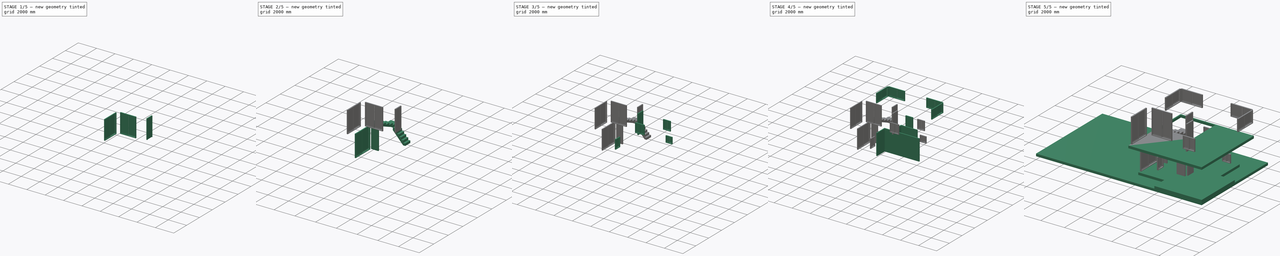
[diagram: build sequence overview — one tinted view per stage of 5, left to right]
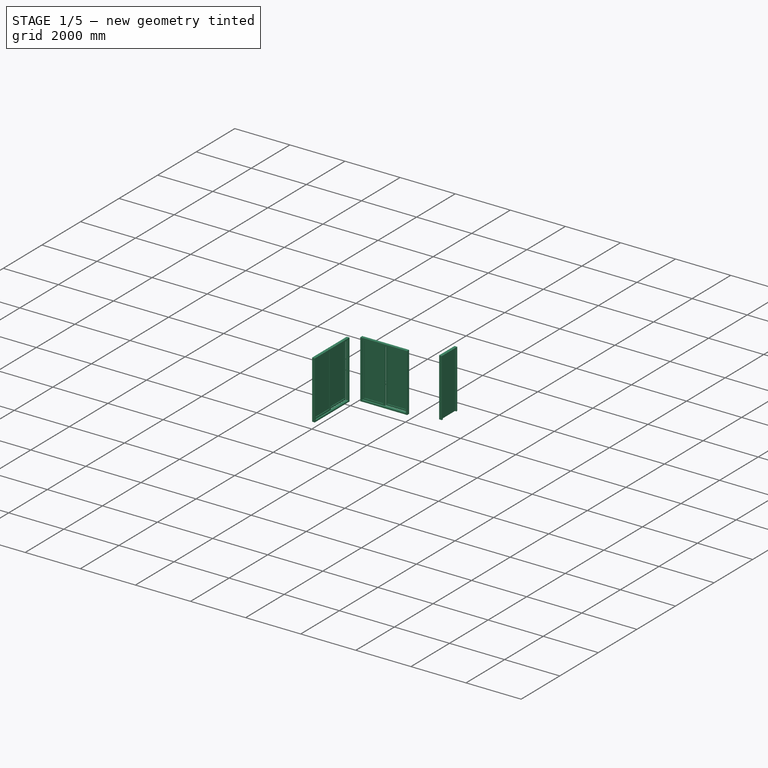
[diagram: stage 1 of 5 — iso view after this stage's code; geometry added in this stage tinted green]
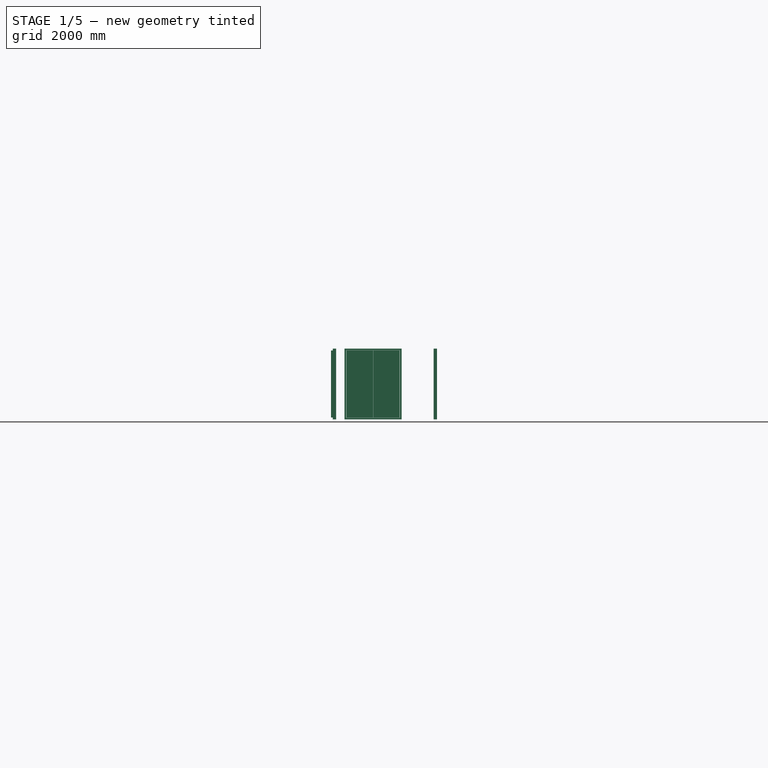
[diagram: stage 1 of 5 — front view after this stage's code; geometry added in this stage tinted green]
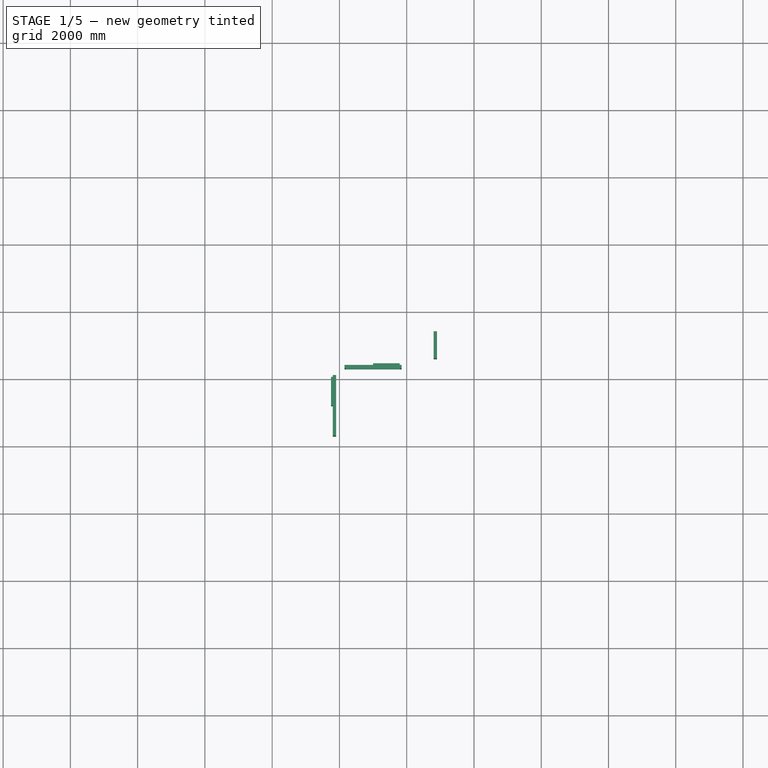
[diagram: stage 1 of 5 — top view after this stage's code; geometry added in this stage tinted green]
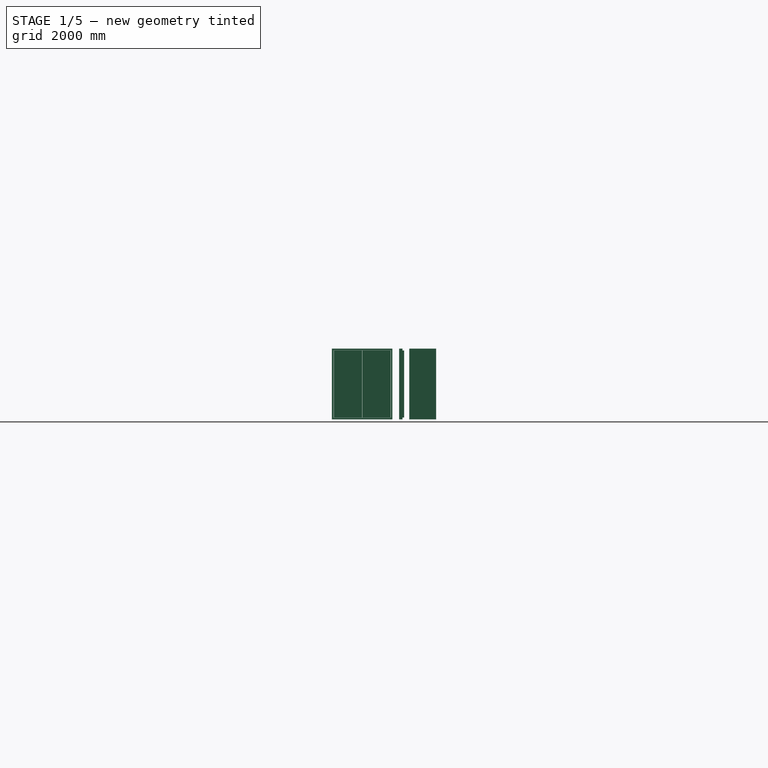
[diagram: stage 1 of 5 — right view after this stage's code; geometry added in this stage tinted green]
FCSTD DOCUMENT  (FreeCAD 1.0R38641 +468 (Git))
Label: Home
License: All rights reserved
LicenseURL: https://en.wikipedia.org/wiki/All_rights_reserved
objects: Part::FeaturePython×30, Sketcher::SketchObject×28, App::GeometryPython×4, App::DocumentObjectGroup×3
note: 90 computed .brp shape members not serialized (recipe doc carries the construction recipe); baked Part::Feature solids carry a one-line shape summary decoded from their .brp

FEATURE [Sketcher::SketchObject] Sketch041
  ArcFitTolerance = 1e-06
  FullyConstrained = true
  MakeInternals = false
  Placement = pos=(-5900,3500,0) rot=(1,0,0;1.5708rad)
  sketch-geometry (4):
    g0: LineSegment StartX=0 StartY=0 StartZ=0 EndX=1800 EndY=0 EndZ=0
    g1: LineSegment StartX=1800 StartY=0 StartZ=0 EndX=1800 EndY=2100 EndZ=0
    g2: LineSegment StartX=1800 StartY=2100 StartZ=0 EndX=0 EndY=2100 EndZ=0
    g3: LineSegment StartX=0 StartY=2100 StartZ=0 EndX=0 EndY=0 EndZ=0
  constraints (11):
    c: Coincident(g0,g1)
    c: Coincident(g1,g2)
    c: Coincident(g2,g3)
    c: Coincident(g3,g0)
    c: Horizontal(g0)
    c: Horizontal(g2)
    c: Vertical(g1)
    c: Vertical(g3)
    c: Coincident(g0,g-1)
    c: DistanceX(g0) = 1800  'Width'
    c: DistanceY(g1) = 2100  'Height'
FEATURE [Part::FeaturePython] Window021  label="Opening"  # Arch/BIM 93 (typed FeaturePython)
  Area = 3780000
  Base = -> Sketch041
  Frame = 50
  Height = 2100
  HoleDepth = 0
  HoleWire = 0
  HorizontalArea = 0
  Hosts = -> [Wall001]
  IfcData = attributes={"GlobalId": {"name": "GlobalId", "type": "IfcGloballyUniqueId", "is_enum": false, "enum_values": []}, "Description": {"... (+1192 chars omitted),+1 more (map truncated)
  IfcType = 93
  LouvreSpacing = 0
  LouvreWidth = 0
  MoveBase = false
  MoveWithHost = true
  Normal = (0,1,-2e-16)
  Opening = 0
  PerimeterLength = 0
  PredefinedType = 0
  Preset = 10
  SymbolElevation = false
  SymbolPlan = false
  VerticalArea = 0
  Width = 1800
FEATURE [Part::FeaturePython] Roof001  label="Roof"  # Arch/BIM 113 (typed FeaturePython)
  Angles = [0,3,0,0]
  Base = -> Sketch019
  BorderLength = 29820.9
  Face = 0
  Flip = false
  Heights = [0,393.058,0,0]
  HorizontalArea = 5.548e+07
  IdRel = [-1,-1,-1,-1]
  IfcData = attributes={"GlobalId": {"name": "GlobalId", "type": "IfcGloballyUniqueId", "is_enum": false, "enum_values": []}, "Description": {"... (+613 chars omitted),+1 more (map truncated)
  IfcType = 113
  MoveBase = false
  MoveWithHost = false
  Overhang = [100,100,100,100]
  PerimeterLength = 29800
  PredefinedType = 0
  RidgeLength = 0
  Runs = [0,7500,0,0]
  Thickness = [50,50,50,50]
  VerticalArea = 1.49204e+06
FEATURE [Part::FeaturePython] Wall003  label="Wall Interior Level 2"  # Arch/BIM 166 (typed FeaturePython)
  Align = 0
  ArchSketchData = true
  Area = 38080000
  Base = -> Sketch015
  BlockHeight = 0
  BlockLength = 0
  CountBroken = 0
  CountEntire = 0
  Face = 0
  Height = 2800
  HorizontalArea = 0
  IfcData = attributes={"GlobalId": {"name": "GlobalId", "type": "IfcGloballyUniqueId", "is_enum": false, "enum_values": []}, "Description": {"... (+533 chars omitted),+1 more (map truncated)
  IfcType = 166
  Joint = 0
  Length = 13600
  MakeBlocks = false
  MoveBase = false
  MoveWithHost = false
  Normal = (0,0,0)
  OffsetFirst = 0
  OffsetSecond = 0
  PerimeterLength = 0
  PredefinedType = 0
  Subtractions = -> [Roof001]
  VerticalArea = 0
  Width = 100
FEATURE [Part::FeaturePython] Wall004  label="Wall Exterior Level 2"  # Arch/BIM 166 (typed FeaturePython)
  Align = 1
  ArchSketchData = true
  Area = 68880000
  Base = -> Sketch020
  BlockHeight = 0
  BlockLength = 0
  CountBroken = 0
  CountEntire = 0
  Face = 0
  Height = 2800
  HorizontalArea = 0
  IfcData = attributes={"GlobalId": {"name": "GlobalId", "type": "IfcGloballyUniqueId", "is_enum": false, "enum_values": []}, "Description": {"... (+533 chars omitted),+1 more (map truncated)
  IfcType = 166
  Joint = 0
  Length = 24600
  MakeBlocks = false
  MoveBase = false
  MoveWithHost = false
  Normal = (0,0,0)
  OffsetFirst = 0
  OffsetSecond = 0
  PerimeterLength = 0
  PredefinedType = 0
  Subtractions = -> [Roof001]
  VerticalArea = 0
  Width = 100
FEATURE [App::DocumentObjectGroup] Group001  label="Stairs"
  Group = -> [Stairs,Structure003,Stairs001,Wall006]
FEATURE [App::GeometryPython] BuildingPart002  label="Level 1"  # Arch/BIM 14 (typed FeaturePython)
  Area = 0
  CompositionType = 0
  Elevation = 0
  Group = -> [Structure001,Group,Group001]
  Height = 0
  HeightPropagate = true
  IfcData = attributes={"GlobalId": {"name": "GlobalId", "type": "IfcGloballyUniqueId", "is_enum": false, "enum_values": []}, "Description": {"... (+845 chars omitted),+1 more (map truncated)
  IfcType = 14
  LevelOffset = 0
  LongName = Level
  MaterialsTable = Undefined=0,1,2,3,4,5,6,7,8,9,10,11,12,13,14,15,16,17,18,19,20,21,22,23,24,25,26,27,28,29,30,31,32,33,34,35
  OnlySolids = true
  expr: Elevation = .Placement.Base.z
FEATURE [App::GeometryPython] BuildingPart  label="House"  # Arch/BIM 10 (typed FeaturePython)
  Area = 0
  BuildingType = 0
  CompositionType = 0
  ElevationOfRefHeight = 0
  ElevationOfTerrain = 0
  Group = -> [BuildingPart002,BuildingPart003,Roof001]
  Height = 0
  HeightPropagate = true
  IfcData = attributes={"GlobalId": {"name": "GlobalId", "type": "IfcGloballyUniqueId", "is_enum": false, "enum_values": []}, "Description": {"... (+989 chars omitted),+1 more (map truncated)
  IfcType = 10
  LevelOffset = 0
  LongName = Building
  MaterialsTable = Undefined=0,1,2,3,4,5,6,7,8,9,10,11,12,13,14,15,16,17,18,19,20,21,22,23,24,25,26,27,28,29,30,31,32,33,34,35,36,37,38,39,40,41,42,4... (+109 chars omitted)
  OnlySolids = true
FEATURE [Sketcher::SketchObject] Sketch061
  ArcFitTolerance = 1e-06
  FullyConstrained = true
  MakeInternals = false
  Placement = pos=(-5850,2300,2500) rot=(1,0,0;1.5708rad)
  sketch-geometry (24):
    g0: LineSegment StartX=0 StartY=0 StartZ=0 EndX=1700 EndY=0 EndZ=0
    g1: LineSegment StartX=1700 StartY=0 StartZ=0 EndX=1700 EndY=2100 EndZ=0
    g2: LineSegment StartX=1700 StartY=2100 StartZ=0 EndX=0 EndY=2100 EndZ=0
    g3: LineSegment StartX=0 StartY=2100 StartZ=0 EndX=0 EndY=0 EndZ=0
    g4: LineSegment StartX=50 StartY=50 StartZ=0 EndX=1650 EndY=50 EndZ=0
    g5: LineSegment StartX=1650 StartY=50 StartZ=0 EndX=1650 EndY=2050 EndZ=0
    g6: LineSegment StartX=1650 StartY=2050 StartZ=0 EndX=50 EndY=2050 EndZ=0
    g7: LineSegment StartX=50 StartY=2050 StartZ=0 EndX=50 EndY=50 EndZ=0
    g8: LineSegment StartX=55 StartY=55 StartZ=0 EndX=847.5 EndY=55 EndZ=0
    g9: LineSegment StartX=847.5 StartY=55 StartZ=0 EndX=847.5 EndY=2045 EndZ=0
    g10: LineSegment StartX=847.5 StartY=2045 StartZ=0 EndX=55 EndY=2045 EndZ=0
    g11: LineSegment StartX=55 StartY=2045 StartZ=0 EndX=55 EndY=55 EndZ=0
    g12: LineSegment StartX=105 StartY=105 StartZ=0 EndX=797.5 EndY=105 EndZ=0
    g13: LineSegment StartX=797.5 StartY=105 StartZ=0 EndX=797.5 EndY=1995 EndZ=0
    g14: LineSegment StartX=797.5 StartY=1995 StartZ=0 EndX=105 EndY=1995 EndZ=0
    g15: LineSegment StartX=105 StartY=1995 StartZ=0 EndX=105 EndY=105 EndZ=0
    g16: LineSegment StartX=852.5 StartY=55 StartZ=0 EndX=1645 EndY=55 EndZ=0
    g17: LineSegment StartX=1645 StartY=55 StartZ=0 EndX=1645 EndY=2045 EndZ=0
    g18: LineSegment StartX=1645 StartY=2045 StartZ=0 EndX=852.5 EndY=2045 EndZ=0
    g19: LineSegment StartX=852.5 StartY=2045 StartZ=0 EndX=852.5 EndY=55 EndZ=0
    g20: LineSegment StartX=902.5 StartY=105 StartZ=0 EndX=1595 EndY=105 EndZ=0
    g21: LineSegment StartX=1595 StartY=105 StartZ=0 EndX=1595 EndY=1995 EndZ=0
    g22: LineSegment StartX=1595 StartY=1995 StartZ=0 EndX=902.5 EndY=1995 EndZ=0
    g23: LineSegment StartX=902.5 StartY=1995 StartZ=0 EndX=902.5 EndY=105 EndZ=0
  constraints (71):
    c: Coincident(g0,g1)
    c: Coincident(g1,g2)
    c: Coincident(g2,g3)
    c: Coincident(g3,g0)
    c: Horizontal(g0)
    c: Horizontal(g2)
    c: Vertical(g1)
    c: Vertical(g3)
    c: Coincident(g4,g5)
    c: Coincident(g5,g6)
    c: Coincident(g6,g7)
    c: Coincident(g7,g4)
    c: Horizontal(g4)
    c: Horizontal(g6)
    c: Vertical(g5)
    c: Vertical(g7)
    c: DistanceY(g1) = 2100  'Height'
    c: DistanceX(g0) = 1700  'Width'
    c: DistanceY(g6,g2) = 50  'Frame1'
    c: DistanceX(g2,g6) = 50  'Frame2'
    c: DistanceX(g4,g0) = 50  'Frame3'
    c: DistanceY(g0,g4) = 50  'Frame4'
    c: Coincident(g0,g-1)
    c: Coincident(g8,g9)
    c: Coincident(g9,g10)
    c: Coincident(g10,g11)
    c: Coincident(g11,g8)
    c: Horizontal(g8)
    c: Horizontal(g10)
    c: Vertical(g9)
    c: Vertical(g11)
    c: Coincident(g12,g13)
    c: Coincident(g13,g14)
    c: Coincident(g14,g15)
    c: Coincident(g15,g12)
    c: Horizontal(g12)
    c: Horizontal(g14)
    c: Vertical(g13)
    c: Vertical(g15)
    c: Coincident(g16,g17)
    c: Coincident(g17,g18)
    c: Coincident(g18,g19)
    c: Coincident(g19,g16)
    c: Horizontal(g16)
    c: Horizontal(g18)
    c: Vertical(g17)
    c: Vertical(g19)
    c: Coincident(g20,g21)
    c: Coincident(g21,g22)
    c: Coincident(g22,g23)
    c: Coincident(g23,g20)
    c: Horizontal(g20)
    c: Horizontal(g22)
    c: Vertical(g21)
    c: Vertical(g23)
    c: DistanceY(g8,g12) = 50  'Frame5'
    c: DistanceX(g8,g12) = 50  'Frame6'
    c: DistanceX(g21,g17) = 50  'Frame7'
    c: DistanceY(g21,g17) = 50  'Frame8'
    c: DistanceX(g16,g20) = 50  'Frame9'
    c: DistanceX(g14,g10) = 50  'Frame10'
    c: Equal(g22,g14)
    c: DistanceY(g8,g16) = 0
    c: DistanceY(g10,g18) = 0
    c: DistanceX(g4,g8) = 5
    c: DistanceY(g4,g8) = 5
    c: DistanceX(g6,g18) = -5
    c: DistanceY(g6,g18) = -5
    c: DistanceX(g9,g19) = 5
    c: PointOnObject(g13,g22)
    c: PointOnObject(g12,g20)
FEATURE [Part::FeaturePython] Window041  # Arch/BIM 170 (typed FeaturePython)
  Area = 3570000
  Base = -> Sketch061
  Frame = 50
  Height = 2100
  HoleDepth = 0
  HoleWire = 0
  HorizontalArea = 0
  Hosts = -> [Wall003]
  IfcData = attributes={"GlobalId": {"name": "GlobalId", "type": "IfcGloballyUniqueId", "is_enum": false, "enum_values": []}, "Description": {"... (+1231 chars omitted),+1 more (map truncated)
  IfcType = 170
  LouvreSpacing = 0
  LouvreWidth = 0
  MoveBase = false
  MoveWithHost = true
  Normal = (0,1,-2e-16)
  Opening = 0
  OverallHeight = 2100
  OverallWidth = 1700
  PartitioningType = 0
  PerimeterLength = 0
  PredefinedType = 0
  Preset = 5
  SymbolElevation = false
  SymbolPlan = false
  VerticalArea = 0
  Width = 1700
  WindowParts = <same value as first occurrence — deduplicated (x11 in doc)>
  expr: OverallHeight = .Height.Value
  expr: OverallWidth = .Width.Value
FEATURE [Sketcher::SketchObject] Sketch062
  ArcFitTolerance = 1e-06
  FullyConstrained = true
  MakeInternals = false
  Placement = pos=(-3100,2600,2500) rot=(0.57735,0.57735,0.57735;2.0944rad)
  sketch-geometry (8):
    g0: LineSegment StartX=0 StartY=0 StartZ=0 EndX=800 EndY=0 EndZ=0
    g1: LineSegment StartX=800 StartY=0 StartZ=0 EndX=800 EndY=2100 EndZ=0
    g2: LineSegment StartX=800 StartY=2100 StartZ=0 EndX=0 EndY=2100 EndZ=0
    g3: LineSegment StartX=0 StartY=2100 StartZ=0 EndX=0 EndY=0 EndZ=0
    g4: LineSegment StartX=50 StartY=0 StartZ=0 EndX=750 EndY=0 EndZ=0
    g5: LineSegment StartX=750 StartY=0 StartZ=0 EndX=750 EndY=2050 EndZ=0
    g6: LineSegment StartX=750 StartY=2050 StartZ=0 EndX=50 EndY=2050 EndZ=0
    g7: LineSegment StartX=50 StartY=2050 StartZ=0 EndX=50 EndY=0 EndZ=0
  constraints (23):
    c: Coincident(g0,g1)
    c: Coincident(g1,g2)
    c: Coincident(g2,g3)
    c: Coincident(g3,g0)
    c: Horizontal(g0)
    c: Horizontal(g2)
    c: Vertical(g1)
    c: Vertical(g3)
    c: Coincident(g4,g5)
    c: Coincident(g5,g6)
    c: Coincident(g6,g7)
    c: Coincident(g7,g4)
    c: Horizontal(g4)
    c: Horizontal(g6)
    c: Vertical(g5)
    c: Vertical(g7)
    c: DistanceY(g1) = 2100  'Height'
    c: DistanceX(g0) = 800  'Width'
    c: DistanceY(g6,g2) = 50  'Frame1'
    c: DistanceX(g2,g6) = 50  'Frame2'
    c: DistanceX(g4,g0) = 50  'Frame3'
    c: DistanceY(g0,g4) = 0
    c: Coincident(g0,g-1)
FEATURE [Part::FeaturePython] Window042  label="Door014"  # Arch/BIM 41 (typed FeaturePython)
  Area = 1680000
  Base = -> Sketch062
  Frame = 50
  Height = 2100
  HoleDepth = 0
  HoleWire = 0
  HorizontalArea = 0
  Hosts = -> [Wall003]
  IfcData = attributes={"GlobalId": {"name": "GlobalId", "type": "IfcGloballyUniqueId", "is_enum": false, "enum_values": []}, "Description": {"... (+1933 chars omitted),+1 more (map truncated)
  IfcType = 41
  LouvreSpacing = 0
  LouvreWidth = 0
  MoveBase = false
  MoveWithHost = true
  Normal = (-1,0,0)
  Opening = 0
  OperationType = 0
  OverallHeight = 2100
  OverallWidth = 800
  PerimeterLength = 0
  PredefinedType = 0
  Preset = 6
  SymbolElevation = false
  SymbolPlan = false
  VerticalArea = 0
  Width = 800
  WindowParts = OuterFrame | Frame | Wire0,Wire1 | 50.0+V | 0.00+V | Door | Solid panel | Wire1,Edge8,Mode1 | 50.0 | 50.0+V
  expr: OverallHeight = .Height.Value
  expr: OverallWidth = .Width.Value
FEATURE [Sketcher::SketchObject] Sketch063
  ArcFitTolerance = 1e-06
  FullyConstrained = true
  MakeInternals = false
  Placement = pos=(-6100,300,2500) rot=(0.57735,0.57735,0.57735;2.0944rad)
  sketch-geometry (24):
    g0: LineSegment StartX=0 StartY=0 StartZ=0 EndX=1800 EndY=0 EndZ=0
    g1: LineSegment StartX=1800 StartY=0 StartZ=0 EndX=1800 EndY=2100 EndZ=0
    g2: LineSegment StartX=1800 StartY=2100 StartZ=0 EndX=0 EndY=2100 EndZ=0
    g3: LineSegment StartX=0 StartY=2100 StartZ=0 EndX=0 EndY=0 EndZ=0
    g4: LineSegment StartX=50 StartY=50 StartZ=0 EndX=1750 EndY=50 EndZ=0
    g5: LineSegment StartX=1750 StartY=50 StartZ=0 EndX=1750 EndY=2050 EndZ=0
    g6: LineSegment StartX=1750 StartY=2050 StartZ=0 EndX=50 EndY=2050 EndZ=0
    g7: LineSegment StartX=50 StartY=2050 StartZ=0 EndX=50 EndY=50 EndZ=0
    g8: LineSegment StartX=55 StartY=55 StartZ=0 EndX=897.5 EndY=55 EndZ=0
    g9: LineSegment StartX=897.5 StartY=55 StartZ=0 EndX=897.5 EndY=2045 EndZ=0
    g10: LineSegment StartX=897.5 StartY=2045 StartZ=0 EndX=55 EndY=2045 EndZ=0
    g11: LineSegment StartX=55 StartY=2045 StartZ=0 EndX=55 EndY=55 EndZ=0
    g12: LineSegment StartX=105 StartY=105 StartZ=0 EndX=847.5 EndY=105 EndZ=0
    g13: LineSegment StartX=847.5 StartY=105 StartZ=0 EndX=847.5 EndY=1995 EndZ=0
    g14: LineSegment StartX=847.5 StartY=1995 StartZ=0 EndX=105 EndY=1995 EndZ=0
    g15: LineSegment StartX=105 StartY=1995 StartZ=0 EndX=105 EndY=105 EndZ=0
    g16: LineSegment StartX=902.5 StartY=55 StartZ=0 EndX=1745 EndY=55 EndZ=0
    g17: LineSegment StartX=1745 StartY=55 StartZ=0 EndX=1745 EndY=2045 EndZ=0
    g18: LineSegment StartX=1745 StartY=2045 StartZ=0 EndX=902.5 EndY=2045 EndZ=0
    g19: LineSegment StartX=902.5 StartY=2045 StartZ=0 EndX=902.5 EndY=55 EndZ=0
    g20: LineSegment StartX=952.5 StartY=105 StartZ=0 EndX=1695 EndY=105 EndZ=0
    g21: LineSegment StartX=1695 StartY=105 StartZ=0 EndX=1695 EndY=1995 EndZ=0
    g22: LineSegment StartX=1695 StartY=1995 StartZ=0 EndX=952.5 EndY=1995 EndZ=0
    g23: LineSegment StartX=952.5 StartY=1995 StartZ=0 EndX=952.5 EndY=105 EndZ=0
  constraints (71):
    c: Coincident(g0,g1)
    c: Coincident(g1,g2)
    c: Coincident(g2,g3)
    c: Coincident(g3,g0)
    c: Horizontal(g0)
    c: Horizontal(g2)
    c: Vertical(g1)
    c: Vertical(g3)
    c: Coincident(g4,g5)
    c: Coincident(g5,g6)
    c: Coincident(g6,g7)
    c: Coincident(g7,g4)
    c: Horizontal(g4)
    c: Horizontal(g6)
    c: Vertical(g5)
    c: Vertical(g7)
    c: DistanceY(g1) = 2100  'Height'
    c: DistanceX(g0) = 1800  'Width'
    c: DistanceY(g6,g2) = 50  'Frame1'
    c: DistanceX(g2,g6) = 50  'Frame2'
    c: DistanceX(g4,g0) = 50  'Frame3'
    c: DistanceY(g0,g4) = 50  'Frame4'
    c: Coincident(g0,g-1)
    c: Coincident(g8,g9)
    c: Coincident(g9,g10)
    c: Coincident(g10,g11)
    c: Coincident(g11,g8)
    c: Horizontal(g8)
    c: Horizontal(g10)
    c: Vertical(g9)
    c: Vertical(g11)
    c: Coincident(g12,g13)
    c: Coincident(g13,g14)
    c: Coincident(g14,g15)
    c: Coincident(g15,g12)
    c: Horizontal(g12)
    c: Horizontal(g14)
    c: Vertical(g13)
    c: Vertical(g15)
    c: Coincident(g16,g17)
    c: Coincident(g17,g18)
    c: Coincident(g18,g19)
    c: Coincident(g19,g16)
    c: Horizontal(g16)
    c: Horizontal(g18)
    c: Vertical(g17)
    c: Vertical(g19)
    c: Coincident(g20,g21)
    c: Coincident(g21,g22)
    c: Coincident(g22,g23)
    c: Coincident(g23,g20)
    c: Horizontal(g20)
    c: Horizontal(g22)
    c: Vertical(g21)
    c: Vertical(g23)
    c: DistanceY(g8,g12) = 50  'Frame5'
    c: DistanceX(g8,g12) = 50  'Frame6'
    c: DistanceX(g21,g17) = 50  'Frame7'
    c: DistanceY(g21,g17) = 50  'Frame8'
    c: DistanceX(g16,g20) = 50  'Frame9'
    c: DistanceX(g14,g10) = 50  'Frame10'
    c: Equal(g22,g14)
    c: DistanceY(g8,g16) = 0
    c: DistanceY(g10,g18) = 0
    c: DistanceX(g4,g8) = 5
    c: DistanceY(g4,g8) = 5
    c: DistanceX(g6,g18) = -5
    c: DistanceY(g6,g18) = -5
    c: DistanceX(g9,g19) = 5
    c: PointOnObject(g13,g22)
    c: PointOnObject(g12,g20)
FEATURE [Part::FeaturePython] Window043  # Arch/BIM 170 (typed FeaturePython)
  Area = 3780000
  Base = -> Sketch063
  Frame = 50
  Height = 2100
  HoleDepth = 0
  HoleWire = 0
  HorizontalArea = 0
  Hosts = -> [Wall004]
  IfcData = attributes={"GlobalId": {"name": "GlobalId", "type": "IfcGloballyUniqueId", "is_enum": false, "enum_values": []}, "Description": {"... (+1231 chars omitted),+1 more (map truncated)
  IfcType = 170
  LouvreSpacing = 0
  LouvreWidth = 0
  MoveBase = false
  MoveWithHost = true
  Normal = (-1,0,0)
  Opening = 0
  OverallHeight = 2100
  OverallWidth = 1800
  PartitioningType = 0
  PerimeterLength = 0
  PredefinedType = 0
  Preset = 5
  SymbolElevation = false
  SymbolPlan = false
  VerticalArea = 0
  Width = 1800
  WindowParts = <same value as first occurrence — deduplicated (x11 in doc)>
  expr: OverallHeight = .Height.Value
  expr: OverallWidth = .Width.Value
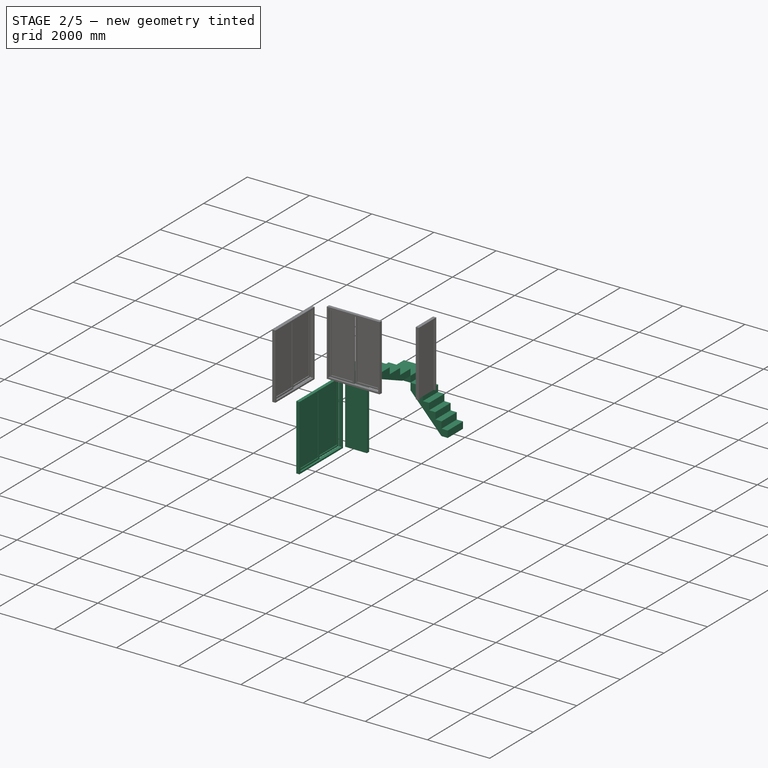
[diagram: stage 2 of 5 — iso view after this stage's code; geometry added in this stage tinted green]
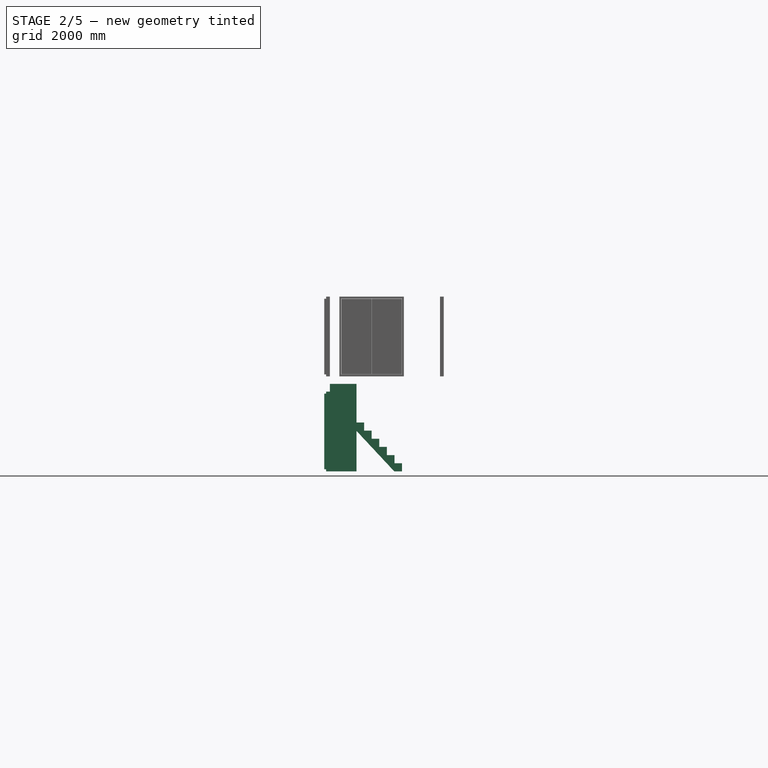
[diagram: stage 2 of 5 — front view after this stage's code; geometry added in this stage tinted green]
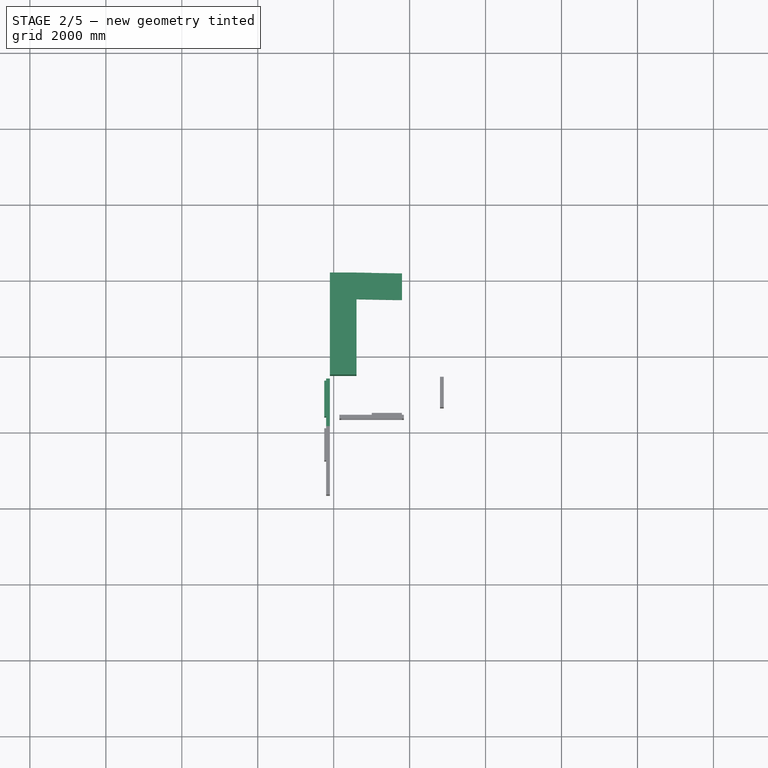
[diagram: stage 2 of 5 — top view after this stage's code; geometry added in this stage tinted green]
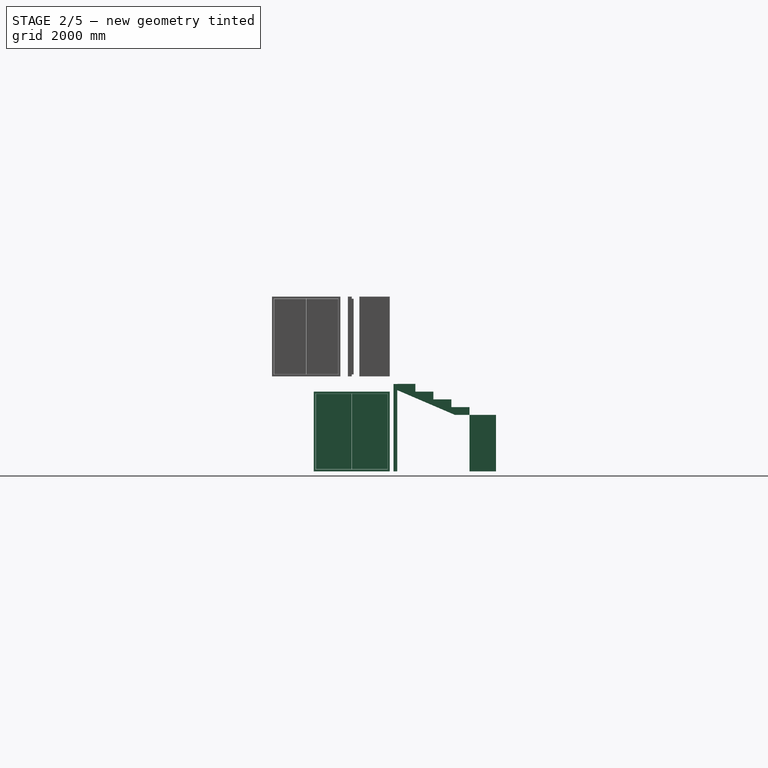
[diagram: stage 2 of 5 — right view after this stage's code; geometry added in this stage tinted green]
FEATURE [Sketcher::SketchObject] Sketch002  label="S Wall Exterior Level 1"
  ArcFitTolerance = 1e-06
  FullyConstrained = true
  MakeInternals = false
  sketch-geometry (35):
    g0: LineSegment [constr] StartX=0 StartY=0 StartZ=0 EndX=0 EndY=4000 EndZ=0
    g1: LineSegment [constr] StartX=-4000 StartY=0 StartZ=0 EndX=0 EndY=0 EndZ=0
    g2: LineSegment [constr] StartX=-1200 StartY=6300 StartZ=0 EndX=-6200 EndY=6300 EndZ=0
    g3: LineSegment [constr] StartX=-6200 StartY=6300 StartZ=0 EndX=-6200 EndY=1200 EndZ=0
    g4: LineSegment [constr] StartX=0 StartY=4000 StartZ=0 EndX=-1200 EndY=4000 EndZ=0
    g5: LineSegment [constr] StartX=-1200 StartY=4000 StartZ=0 EndX=-4000 EndY=4000 EndZ=0
    g6: GeomPoint X=-4000 Y=1200 Z=0
    g7: LineSegment [constr] StartX=-6200 StartY=1200 StartZ=0 EndX=-4000 EndY=1200 EndZ=0
    g8: LineSegment [constr] StartX=-4000 StartY=1200 StartZ=0 EndX=-1200 EndY=1200 EndZ=0
    g9: LineSegment [constr] StartX=-4000 StartY=4000 StartZ=0 EndX=-4000 EndY=1200 EndZ=0
    g10: LineSegment [constr] StartX=-4000 StartY=1200 StartZ=0 EndX=-4000 EndY=0 EndZ=0
    g11: LineSegment [constr] StartX=-1200 StartY=1200 StartZ=0 EndX=-1200 EndY=4000 EndZ=0
    g12: LineSegment [constr] StartX=-1200 StartY=4000 StartZ=0 EndX=-1200 EndY=6300 EndZ=0
    g13: LineSegment StartX=-1300 StartY=3900 StartZ=0 EndX=-1300 EndY=6200 EndZ=0
    g14: LineSegment StartX=-1300 StartY=6200 StartZ=0 EndX=-6100 EndY=6200 EndZ=0
    g15: LineSegment StartX=-6100 StartY=6200 StartZ=0 EndX=-6100 EndY=1300 EndZ=0
    g16: LineSegment StartX=-6100 StartY=1300 StartZ=0 EndX=-3900 EndY=1300 EndZ=0
    g17: LineSegment StartX=-3900 StartY=1300 StartZ=0 EndX=-3900 EndY=100 EndZ=0
    g18: LineSegment StartX=-3900 StartY=100 StartZ=0 EndX=-100 EndY=100 EndZ=0
    g19: LineSegment StartX=-100 StartY=100 StartZ=0 EndX=-100 EndY=3900 EndZ=0
    g20: LineSegment StartX=-100 StartY=3900 StartZ=0 EndX=-1300 EndY=3900 EndZ=0
    g21: GeomPoint X=-2100 Y=6200 Z=0
    g22: GeomPoint X=-2900 Y=6200 Z=0
    g23: GeomPoint X=-3400 Y=6200 Z=0
    g24: GeomPoint X=-4200 Y=6200 Z=0
    g25: GeomPoint X=-4700 Y=6200 Z=0
    g26: GeomPoint X=-5500 Y=6200 Z=0
    g27: GeomPoint X=-6100 Y=5600 Z=0
    g28: GeomPoint X=-6100 Y=4800 Z=0
    g29: GeomPoint X=-6100 Y=3400 Z=0
    g30: GeomPoint X=-6100 Y=1400 Z=0
    g31: GeomPoint X=-3900 Y=1000 Z=0
    g32: GeomPoint X=-3900 Y=300 Z=0
    g33: GeomPoint X=-1000 Y=3900 Z=0
    g34: GeomPoint X=-300 Y=3900 Z=0
  constraints (86):
    c: Coincident(g0,g4)
    c: Coincident(g5,g9)
    c: Coincident(g10,g1)
    c: Coincident(g1,g0)
    c: Vertical(g0)
    c: Horizontal(g1)
    c: Distance(g0,g10) = 4000
    c: Distance(g4,g1) = 4000
    c: Coincident(g0,g-1)
    c: Coincident(g12,g2)
    c: Coincident(g2,g3)
    c: Coincident(g3,g7)
    c: Coincident(g8,g11)
    c: Vertical(g3)
    c: Horizontal(g2)
    c: Distance(g11,g3) = 5000
    c: Distance(g2,g8) = 5100
    c: DistanceX(g11,g0) = 1200
    c: DistanceY(g10,g11) = 1200
    c: Horizontal(g4)
    c: DistanceX(g4,g0) = 1200
    c: Tangent(g4,g5) = -1.5708
    c: DistanceX(g3,g6) = 2200
    c: Coincident(g7,g8)
    c: Horizontal(g7)
    c: Horizontal(g8)
    c: Coincident(g7,g6)
    c: Coincident(g9,g10)
    c: Vertical(g9)
    c: Coincident(g9,g6)
    c: Coincident(g11,g12)
    c: Vertical(g12)
    c: Coincident(g11,g4)
    c: Coincident(g13,g14)
    c: Coincident(g13,g20)
    c: Coincident(g14,g15)
    c: Coincident(g15,g16)
    c: Coincident(g16,g17)
    c: Coincident(g17,g18)
    c: Coincident(g18,g19)
    c: Coincident(g19,g20)
    c: Parallel(g20,g4)
    c: Parallel(g13,g12)
    c: Parallel(g14,g2)
    c: Parallel(g15,g3)
    c: Parallel(g16,g7)
    c: Parallel(g17,g10)
    c: Parallel(g18,g1)
    c: Parallel(g19,g0)
    c: DistanceY(g3,g15) = 100
    c: DistanceY(g14,g2) = 100
    c: DistanceY(g1,g17) = 100
    c: DistanceX(g18,g0) = 100
    c: DistanceY(g19,g0) = 100
    c: DistanceX(g3,g15) = 100
    c: DistanceX(g13,g2) = 100
    c: DistanceX(g6,g16) = 100
    c: PointOnObject(g21,g14)
    c: PointOnObject(g22,g14)
    c: PointOnObject(g23,g14)
    c: PointOnObject(g24,g14)
    c: PointOnObject(g25,g14)
    c: PointOnObject(g26,g14)
    c: PointOnObject(g27,g15)
    c: PointOnObject(g28,g15)
    c: PointOnObject(g29,g15)
    c: PointOnObject(g30,g15)
    c: PointOnObject(g31,g17)
    c: PointOnObject(g32,g17)
    c: PointOnObject(g33,g20)
    c: PointOnObject(g34,g20)
    c: DistanceX(g21,g13) = 800
    c: DistanceX(g22,g21) = 800
    c: DistanceX(g23,g22) = 500
    c: DistanceX(g24,g23) = 800
    c: DistanceX(g25,g24) = 500
    c: DistanceX(g26,g25) = 800
    c: DistanceY(g27,g14) = 600
    c: DistanceY(g28,g27) = 800
    c: DistanceY(g15,g30) = 100
    c: DistanceY(g30,g29) = 2000
    c: DistanceX(g34,g19) = 200
    c: DistanceX(g33,g34) = 700
    c: DistanceY(g31,g16) = 300
    c: DistanceY(g32,g31) = 700
    c: DistanceY(g13,g13) = 2300
FEATURE [Part::FeaturePython] Wall  label="Wall Exterior"  # Arch/BIM 166 (typed FeaturePython)
  Align = 0
  ArchSketchData = true
  Area = 56580000
  Base = -> Sketch002
  BlockHeight = 0
  BlockLength = 0
  CountBroken = 0
  CountEntire = 0
  Face = 0
  Height = 2300
  HorizontalArea = 0
  IfcData = attributes={"GlobalId": {"name": "GlobalId", "type": "IfcGloballyUniqueId", "is_enum": false, "enum_values": []}, "Description": {"... (+533 chars omitted),+1 more (map truncated)
  IfcType = 166
  Joint = 0
  Length = 24600
  MakeBlocks = false
  MoveBase = false
  MoveWithHost = false
  Normal = (0,0,0)
  OffsetFirst = 0
  OffsetSecond = 0
  PerimeterLength = 0
  PredefinedType = 0
  VerticalArea = 0
  Width = 100
FEATURE [Sketcher::SketchObject] Sketch058
  ArcFitTolerance = 1e-06
  FullyConstrained = true
  MakeInternals = false
  Placement = pos=(-6100,1400,0) rot=(0.57735,0.57735,0.57735;2.0944rad)
  sketch-geometry (24):
    g0: LineSegment StartX=0 StartY=0 StartZ=0 EndX=2000 EndY=0 EndZ=0
    g1: LineSegment StartX=2000 StartY=0 StartZ=0 EndX=2000 EndY=2100 EndZ=0
    g2: LineSegment StartX=2000 StartY=2100 StartZ=0 EndX=0 EndY=2100 EndZ=0
    g3: LineSegment StartX=0 StartY=2100 StartZ=0 EndX=0 EndY=0 EndZ=0
    g4: LineSegment StartX=50 StartY=50 StartZ=0 EndX=1950 EndY=50 EndZ=0
    g5: LineSegment StartX=1950 StartY=50 StartZ=0 EndX=1950 EndY=2050 EndZ=0
    g6: LineSegment StartX=1950 StartY=2050 StartZ=0 EndX=50 EndY=2050 EndZ=0
    g7: LineSegment StartX=50 StartY=2050 StartZ=0 EndX=50 EndY=50 EndZ=0
    g8: LineSegment StartX=55 StartY=55 StartZ=0 EndX=997.5 EndY=55 EndZ=0
    g9: LineSegment StartX=997.5 StartY=55 StartZ=0 EndX=997.5 EndY=2045 EndZ=0
    g10: LineSegment StartX=997.5 StartY=2045 StartZ=0 EndX=55 EndY=2045 EndZ=0
    g11: LineSegment StartX=55 StartY=2045 StartZ=0 EndX=55 EndY=55 EndZ=0
    g12: LineSegment StartX=105 StartY=105 StartZ=0 EndX=947.5 EndY=105 EndZ=0
    g13: LineSegment StartX=947.5 StartY=105 StartZ=0 EndX=947.5 EndY=1995 EndZ=0
    g14: LineSegment StartX=947.5 StartY=1995 StartZ=0 EndX=105 EndY=1995 EndZ=0
    g15: LineSegment StartX=105 StartY=1995 StartZ=0 EndX=105 EndY=105 EndZ=0
    g16: LineSegment StartX=1002.5 StartY=55 StartZ=0 EndX=1945 EndY=55 EndZ=0
    g17: LineSegment StartX=1945 StartY=55 StartZ=0 EndX=1945 EndY=2045 EndZ=0
    g18: LineSegment StartX=1945 StartY=2045 StartZ=0 EndX=1002.5 EndY=2045 EndZ=0
    g19: LineSegment StartX=1002.5 StartY=2045 StartZ=0 EndX=1002.5 EndY=55 EndZ=0
    g20: LineSegment StartX=1052.5 StartY=105 StartZ=0 EndX=1895 EndY=105 EndZ=0
    g21: LineSegment StartX=1895 StartY=105 StartZ=0 EndX=1895 EndY=1995 EndZ=0
    g22: LineSegment StartX=1895 StartY=1995 StartZ=0 EndX=1052.5 EndY=1995 EndZ=0
    g23: LineSegment StartX=1052.5 StartY=1995 StartZ=0 EndX=1052.5 EndY=105 EndZ=0
  constraints (71):
    c: Coincident(g0,g1)
    c: Coincident(g1,g2)
    c: Coincident(g2,g3)
    c: Coincident(g3,g0)
    c: Horizontal(g0)
    c: Horizontal(g2)
    c: Vertical(g1)
    c: Vertical(g3)
    c: Coincident(g4,g5)
    c: Coincident(g5,g6)
    c: Coincident(g6,g7)
    c: Coincident(g7,g4)
    c: Horizontal(g4)
    c: Horizontal(g6)
    c: Vertical(g5)
    c: Vertical(g7)
    c: DistanceY(g1) = 2100  'Height'
    c: DistanceX(g0) = 2000  'Width'
    c: DistanceY(g6,g2) = 50  'Frame1'
    c: DistanceX(g2,g6) = 50  'Frame2'
    c: DistanceX(g4,g0) = 50  'Frame3'
    c: DistanceY(g0,g4) = 50  'Frame4'
    c: Coincident(g0,g-1)
    c: Coincident(g8,g9)
    c: Coincident(g9,g10)
    c: Coincident(g10,g11)
    c: Coincident(g11,g8)
    c: Horizontal(g8)
    c: Horizontal(g10)
    c: Vertical(g9)
    c: Vertical(g11)
    c: Coincident(g12,g13)
    c: Coincident(g13,g14)
    c: Coincident(g14,g15)
    c: Coincident(g15,g12)
    c: Horizontal(g12)
    c: Horizontal(g14)
    c: Vertical(g13)
    c: Vertical(g15)
    c: Coincident(g16,g17)
    c: Coincident(g17,g18)
    c: Coincident(g18,g19)
    c: Coincident(g19,g16)
    c: Horizontal(g16)
    c: Horizontal(g18)
    c: Vertical(g17)
    c: Vertical(g19)
    c: Coincident(g20,g21)
    c: Coincident(g21,g22)
    c: Coincident(g22,g23)
    c: Coincident(g23,g20)
    c: Horizontal(g20)
    c: Horizontal(g22)
    c: Vertical(g21)
    c: Vertical(g23)
    c: DistanceY(g8,g12) = 50  'Frame5'
    c: DistanceX(g8,g12) = 50  'Frame6'
    c: DistanceX(g21,g17) = 50  'Frame7'
    c: DistanceY(g21,g17) = 50  'Frame8'
    c: DistanceX(g16,g20) = 50  'Frame9'
    c: DistanceX(g14,g10) = 50  'Frame10'
    c: Equal(g22,g14)
    c: DistanceY(g8,g16) = 0
    c: DistanceY(g10,g18) = 0
    c: DistanceX(g4,g8) = 5
    c: DistanceY(g4,g8) = 5
    c: DistanceX(g6,g18) = -5
    c: DistanceY(g6,g18) = -5
    c: DistanceX(g9,g19) = 5
    c: PointOnObject(g13,g22)
    c: PointOnObject(g12,g20)
FEATURE [Part::FeaturePython] Window040  # Arch/BIM 170 (typed FeaturePython)
  Area = 4200000
  Base = -> Sketch058
  Frame = 50
  Height = 2100
  HoleDepth = 0
  HoleWire = 0
  HorizontalArea = 0
  Hosts = -> [Wall]
  IfcData = attributes={"GlobalId": {"name": "GlobalId", "type": "IfcGloballyUniqueId", "is_enum": false, "enum_values": []}, "Description": {"... (+1231 chars omitted),+1 more (map truncated)
  IfcType = 170
  LouvreSpacing = 0
  LouvreWidth = 0
  MoveBase = false
  MoveWithHost = true
  Normal = (-1,0,0)
  Opening = 0
  OverallHeight = 2100
  OverallWidth = 2000
  PartitioningType = 0
  PerimeterLength = 0
  PredefinedType = 0
  Preset = 5
  SymbolElevation = false
  SymbolPlan = false
  VerticalArea = 0
  Width = 2000
  WindowParts = <same value as first occurrence — deduplicated (x11 in doc)>
  expr: OverallHeight = .Height.Value
  expr: OverallWidth = .Width.Value
FEATURE [Sketcher::SketchObject] Sketch060  label="S Store Under Stairs"
  ArcFitTolerance = 1e-06
  FullyConstrained = true
  MakeInternals = false
  sketch-geometry (4):
    g0: LineSegment [constr] StartX=0 StartY=0 StartZ=0 EndX=0 EndY=6300 EndZ=0
    g1: GeomPoint X=-6100 Y=3500 Z=0
    g2: GeomPoint X=-5400 Y=3500 Z=0
    g3: LineSegment StartX=-6100 StartY=3500 StartZ=0 EndX=-5400 EndY=3500 EndZ=0
  constraints (10):
    c: PointOnObject(g0,g-2)
    c: Vertical(g0)
    c: DistanceY(g0,g0) = 6300
    c: PointOnObject(g0,g-1)
    c: DistanceX(g1,g2) = 700
    c: Coincident(g3,g1)
    c: Coincident(g3,g2)
    c: DistanceX(g2,g0) = 5400
    c: Distance(g2,g-1) = 3500
    c: Parallel(g3,g-1)
FEATURE [Part::FeaturePython] Stairs  label="Stairs Level 1"  # Arch/BIM 128 (typed FeaturePython)
  AbsTop = (0,0,1500)
  Align = 0
  BlondelRatio = 0
  ConnectionDownStartStairs = 0
  ConnectionEndStairsUp = 0
  DownSlabThickness = 150
  Flight = 0
  Height = 1500
  HorizontalArea = 0
  IfcData = attributes={"GlobalId": {"name": "GlobalId", "type": "IfcGloballyUniqueId", "is_enum": false, "enum_values": []}, "Description": {"... (+760 chars omitted),+1 more (map truncated)
  IfcType = 128
  LandingDepth = 0
  Landings = 0
  Length = 1200
  MoveBase = false
  MoveWithHost = false
  Nosing = 0
  NumberOfSteps = 7
  OutlineLeft = (2) [(0,-60,1114.29),(1200,-60,2400)]
  OutlineLeftAll = (2) [(0,-60,1114.29),(1200,-60,2400)]
  OutlineRight = (2) [(1200,-640,2400),(0,-640,1114.29)]
  OutlineRightAll = (2) [(1200,-640,2400),(0,-640,1114.29)]
  PerimeterLength = 0
  Placement = pos=(-4200,5500,0) rot=(0,0,1;3.14159rad)
  PredefinedType = 0
  RailingHeightLeft = 900
  RailingHeightRight = 900
  RailingOffsetLeft = 60
  RailingOffsetRight = 60
  RiserHeight = 214.286
  RiserHeightEnforce = 0
  RiserThickness = 0
  StringerOverlap = 0
  StringerWidth = 0
  Structure = 1
  StructureOffset = 0
  StructureThickness = 150
  TreadDepth = 200
  TreadDepthEnforce = 0
  TreadThickness = 0
  UpSlabThickness = 150
  VerticalArea = 0
  Width = 700
  Winders = 0
FEATURE [Part::FeaturePython] Structure003  label="Slab Level 1 1/2"  # Arch/BIM 118 (typed FeaturePython)
  Base = -> Sketch011
  BaseMirror = false
  BaseOffsetX = 0
  BaseOffsetY = 0
  BasePerpendicularToTool = false
  BaseRotation = 0
  ComputedLength = 200
  FaceMaker = 0
  Height = 200
  HorizontalArea = 490000
  IfcData = attributes={"GlobalId": {"name": "GlobalId", "type": "IfcGloballyUniqueId", "is_enum": false, "enum_values": []}, "Description": {"... (+453 chars omitted),+1 more (map truncated)
  IfcType = 118
  Length = 0
  MoveBase = false
  MoveWithHost = false
  Nodes = (4) [(-6100,6200,1485.7),(-6100,5500,1485.7),(-5400,5500,1485.7),(-5400,6200,1485.7)]
  NodesOffset = 0
  Normal = (0,0,-1)
  PerimeterLength = 2800
  PredefinedType = 0
  ToolOffsetFirst = 0
  ToolOffsetLast = 0
  VerticalArea = 560000
  Width = 100
FEATURE [Part::FeaturePython] Stairs001  label="Stairs Level 1 1/2"  # Arch/BIM 128 (typed FeaturePython)
  AbsTop = (0,0,1020)
  Align = 0
  BlondelRatio = 0
  ConnectionDownStartStairs = 0
  ConnectionEndStairsUp = 0
  DownSlabThickness = 150
  Flight = 0
  Height = 1020
  HorizontalArea = 0
  IfcData = attributes={"GlobalId": {"name": "GlobalId", "type": "IfcGloballyUniqueId", "is_enum": false, "enum_values": []}, "Description": {"... (+760 chars omitted),+1 more (map truncated)
  IfcType = 128
  LandingDepth = 0
  Landings = 0
  Length = 1900
  MoveBase = false
  MoveWithHost = false
  Nosing = 0
  NumberOfSteps = 5
  OutlineLeft = (2) [(0,-60,1104),(1900,-60,1920)]
  OutlineLeftAll = (2) [(0,-60,1104),(1900,-60,1920)]
  OutlineRight = (2) [(1900,-640,1920),(0,-640,1104)]
  OutlineRightAll = (2) [(1900,-640,1920),(0,-640,1104)]
  PerimeterLength = 0
  Placement = pos=(-5400,5500,1485.71) rot=(0,0,1;4.71239rad)
  PredefinedType = 0
  RailingHeightLeft = 900
  RailingHeightRight = 900
  RailingOffsetLeft = 60
  RailingOffsetRight = 60
  RiserHeight = 204
  RiserHeightEnforce = 0
  RiserThickness = 0
  StringerOverlap = 0
  StringerWidth = 0
  Structure = 1
  StructureOffset = 0
  StructureThickness = 150
  TreadDepth = 475
  TreadDepthEnforce = 0
  TreadThickness = 0
  UpSlabThickness = 150
  VerticalArea = 0
  Width = 700
  Winders = 0
FEATURE [Part::FeaturePython] Wall006  label="Wall Under Stairs"  # Arch/BIM 166 (typed FeaturePython)
  Align = 1
  ArchSketchData = true
  Area = 1610000
  Base = -> Sketch060
  BlockHeight = 0
  BlockLength = 0
  CountBroken = 0
  CountEntire = 0
  Face = 0
  Height = 2300
  HorizontalArea = 70000
  IfcData = attributes={"GlobalId": {"name": "GlobalId", "type": "IfcGloballyUniqueId", "is_enum": false, "enum_values": []}, "Description": {"... (+533 chars omitted),+1 more (map truncated)
  IfcType = 166
  Joint = 0
  Length = 700
  MakeBlocks = false
  MoveBase = false
  MoveWithHost = false
  Normal = (0,0,0)
  OffsetFirst = 0
  OffsetSecond = 0
  PerimeterLength = 1600
  PredefinedType = 0
  VerticalArea = 3680000
  Width = 100
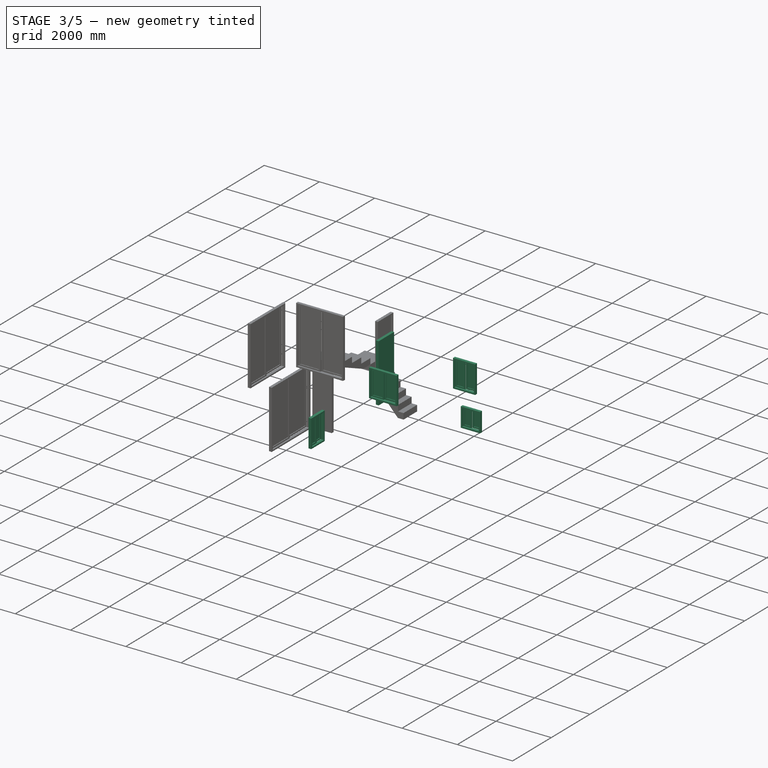
[diagram: stage 3 of 5 — iso view after this stage's code; geometry added in this stage tinted green]
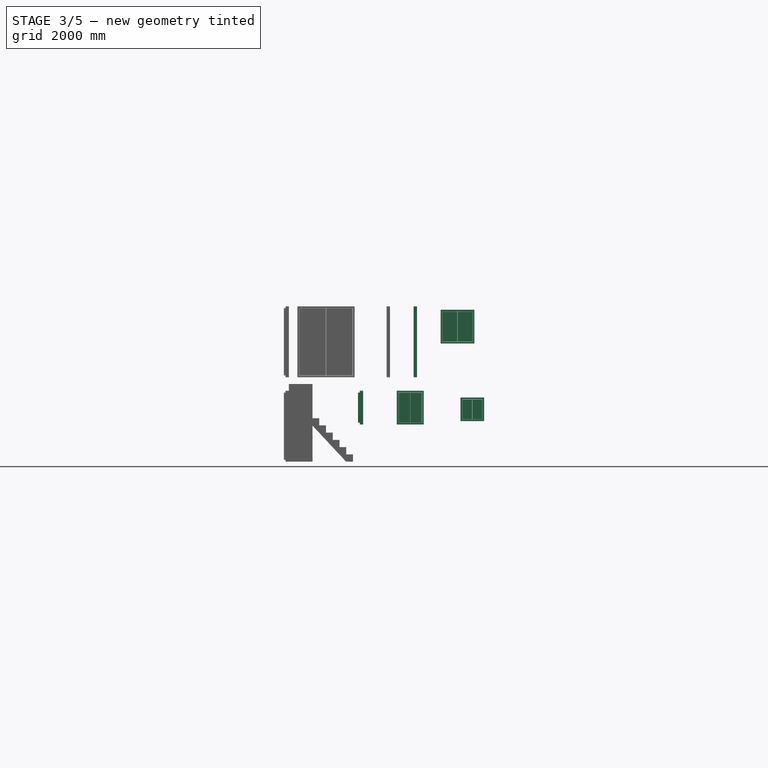
[diagram: stage 3 of 5 — front view after this stage's code; geometry added in this stage tinted green]
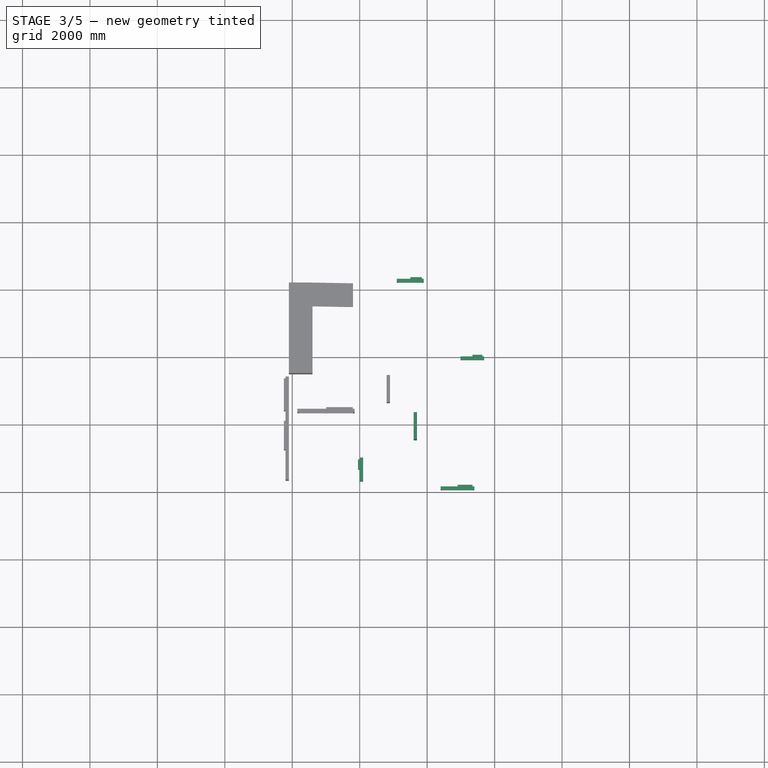
[diagram: stage 3 of 5 — top view after this stage's code; geometry added in this stage tinted green]
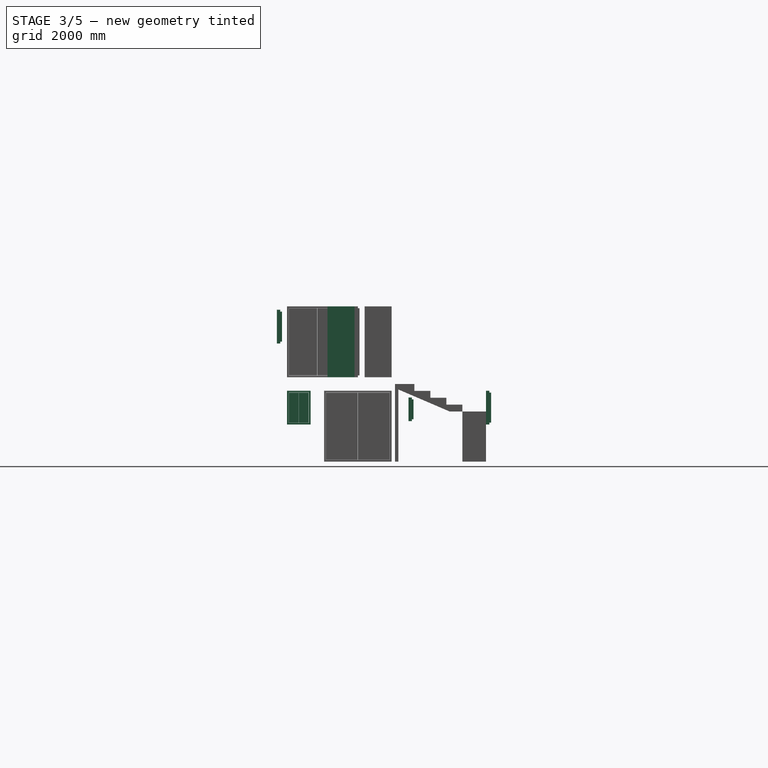
[diagram: stage 3 of 5 — right view after this stage's code; geometry added in this stage tinted green]
FEATURE [Sketcher::SketchObject] Sketch051
  ArcFitTolerance = 1e-06
  FullyConstrained = true
  MakeInternals = false
  Placement = pos=(-1600,0,2500) rot=(1,0,0;1.5708rad)
  sketch-geometry (24):
    g0: LineSegment StartX=0 StartY=0 StartZ=0 EndX=1000 EndY=0 EndZ=0
    g1: LineSegment StartX=1000 StartY=0 StartZ=0 EndX=1000 EndY=1000 EndZ=0
    g2: LineSegment StartX=1000 StartY=1000 StartZ=0 EndX=0 EndY=1000 EndZ=0
    g3: LineSegment StartX=0 StartY=1000 StartZ=0 EndX=0 EndY=0 EndZ=0
    g4: LineSegment StartX=50 StartY=50 StartZ=0 EndX=950 EndY=50 EndZ=0
    g5: LineSegment StartX=950 StartY=50 StartZ=0 EndX=950 EndY=950 EndZ=0
    g6: LineSegment StartX=950 StartY=950 StartZ=0 EndX=50 EndY=950 EndZ=0
    g7: LineSegment StartX=50 StartY=950 StartZ=0 EndX=50 EndY=50 EndZ=0
    g8: LineSegment StartX=55 StartY=55 StartZ=0 EndX=497.5 EndY=55 EndZ=0
    g9: LineSegment StartX=497.5 StartY=55 StartZ=0 EndX=497.5 EndY=945 EndZ=0
    g10: LineSegment StartX=497.5 StartY=945 StartZ=0 EndX=55 EndY=945 EndZ=0
    g11: LineSegment StartX=55 StartY=945 StartZ=0 EndX=55 EndY=55 EndZ=0
    g12: LineSegment StartX=105 StartY=105 StartZ=0 EndX=447.5 EndY=105 EndZ=0
    g13: LineSegment StartX=447.5 StartY=105 StartZ=0 EndX=447.5 EndY=895 EndZ=0
    g14: LineSegment StartX=447.5 StartY=895 StartZ=0 EndX=105 EndY=895 EndZ=0
    g15: LineSegment StartX=105 StartY=895 StartZ=0 EndX=105 EndY=105 EndZ=0
    g16: LineSegment StartX=502.5 StartY=55 StartZ=0 EndX=945 EndY=55 EndZ=0
    g17: LineSegment StartX=945 StartY=55 StartZ=0 EndX=945 EndY=945 EndZ=0
    g18: LineSegment StartX=945 StartY=945 StartZ=0 EndX=502.5 EndY=945 EndZ=0
    g19: LineSegment StartX=502.5 StartY=945 StartZ=0 EndX=502.5 EndY=55 EndZ=0
    g20: LineSegment StartX=552.5 StartY=105 StartZ=0 EndX=895 EndY=105 EndZ=0
    g21: LineSegment StartX=895 StartY=105 StartZ=0 EndX=895 EndY=895 EndZ=0
    g22: LineSegment StartX=895 StartY=895 StartZ=0 EndX=552.5 EndY=895 EndZ=0
    g23: LineSegment StartX=552.5 StartY=895 StartZ=0 EndX=552.5 EndY=105 EndZ=0
  constraints (71):
    c: Coincident(g0,g1)
    c: Coincident(g1,g2)
    c: Coincident(g2,g3)
    c: Coincident(g3,g0)
    c: Horizontal(g0)
    c: Horizontal(g2)
    c: Vertical(g1)
    c: Vertical(g3)
    c: Coincident(g4,g5)
    c: Coincident(g5,g6)
    c: Coincident(g6,g7)
    c: Coincident(g7,g4)
    c: Horizontal(g4)
    c: Horizontal(g6)
    c: Vertical(g5)
    c: Vertical(g7)
    c: DistanceY(g1) = 1000  'Height'
    c: DistanceX(g0) = 1000  'Width'
    c: DistanceY(g6,g2) = 50  'Frame1'
    c: DistanceX(g2,g6) = 50  'Frame2'
    c: DistanceX(g4,g0) = 50  'Frame3'
    c: DistanceY(g0,g4) = 50  'Frame4'
    c: Coincident(g0,g-1)
    c: Coincident(g8,g9)
    c: Coincident(g9,g10)
    c: Coincident(g10,g11)
    c: Coincident(g11,g8)
    c: Horizontal(g8)
    c: Horizontal(g10)
    c: Vertical(g9)
    c: Vertical(g11)
    c: Coincident(g12,g13)
    c: Coincident(g13,g14)
    c: Coincident(g14,g15)
    c: Coincident(g15,g12)
    c: Horizontal(g12)
    c: Horizontal(g14)
    c: Vertical(g13)
    c: Vertical(g15)
    c: Coincident(g16,g17)
    c: Coincident(g17,g18)
    c: Coincident(g18,g19)
    c: Coincident(g19,g16)
    c: Horizontal(g16)
    c: Horizontal(g18)
    c: Vertical(g17)
    c: Vertical(g19)
    c: Coincident(g20,g21)
    c: Coincident(g21,g22)
    c: Coincident(g22,g23)
    c: Coincident(g23,g20)
    c: Horizontal(g20)
    c: Horizontal(g22)
    c: Vertical(g21)
    c: Vertical(g23)
    c: DistanceY(g8,g12) = 50  'Frame5'
    c: DistanceX(g8,g12) = 50  'Frame6'
    c: DistanceX(g21,g17) = 50  'Frame7'
    c: DistanceY(g21,g17) = 50  'Frame8'
    c: DistanceX(g16,g20) = 50  'Frame9'
    c: DistanceX(g14,g10) = 50  'Frame10'
    c: Equal(g22,g14)
    c: DistanceY(g8,g16) = 0
    c: DistanceY(g10,g18) = 0
    c: DistanceX(g4,g8) = 5
    c: DistanceY(g4,g8) = 5
    c: DistanceX(g6,g18) = -5
    c: DistanceY(g6,g18) = -5
    c: DistanceX(g9,g19) = 5
    c: PointOnObject(g13,g22)
    c: PointOnObject(g12,g20)
FEATURE [Part::FeaturePython] Window032  # Arch/BIM 170 (typed FeaturePython)
  Area = 1000000
  Base = -> Sketch051
  Frame = 50
  Height = 1000
  HoleDepth = 0
  HoleWire = 0
  HorizontalArea = 0
  Hosts = -> [Wall004]
  IfcData = attributes={"GlobalId": {"name": "GlobalId", "type": "IfcGloballyUniqueId", "is_enum": false, "enum_values": []}, "Description": {"... (+1231 chars omitted),+1 more (map truncated)
  IfcType = 170
  LouvreSpacing = 0
  LouvreWidth = 0
  MoveBase = false
  MoveWithHost = true
  Normal = (0,1,-2e-16)
  Opening = 0
  OverallHeight = 1000
  OverallWidth = 1000
  PartitioningType = 0
  PerimeterLength = 0
  Placement = pos=(0,0,1000) rot=(0,0,1;0rad)
  PredefinedType = 0
  Preset = 5
  SymbolElevation = false
  SymbolPlan = false
  VerticalArea = 0
  Width = 1000
  WindowParts = <same value as first occurrence — deduplicated (x11 in doc)>
  expr: OverallHeight = .Height.Value
  expr: OverallWidth = .Width.Value
FEATURE [Sketcher::SketchObject] Sketch054
  ArcFitTolerance = 1e-06
  FullyConstrained = true
  MakeInternals = false
  Placement = pos=(-2400,2300,2500) rot=(0.57735,-0.57735,-0.57735;2.0944rad)
  sketch-geometry (8):
    g0: LineSegment StartX=0 StartY=0 StartZ=0 EndX=800 EndY=0 EndZ=0
    g1: LineSegment StartX=800 StartY=0 StartZ=0 EndX=800 EndY=2100 EndZ=0
    g2: LineSegment StartX=800 StartY=2100 StartZ=0 EndX=0 EndY=2100 EndZ=0
    g3: LineSegment StartX=0 StartY=2100 StartZ=0 EndX=0 EndY=0 EndZ=0
    g4: LineSegment StartX=50 StartY=0 StartZ=0 EndX=750 EndY=0 EndZ=0
    g5: LineSegment StartX=750 StartY=0 StartZ=0 EndX=750 EndY=2050 EndZ=0
    g6: LineSegment StartX=750 StartY=2050 StartZ=0 EndX=50 EndY=2050 EndZ=0
    g7: LineSegment StartX=50 StartY=2050 StartZ=0 EndX=50 EndY=0 EndZ=0
  constraints (23):
    c: Coincident(g0,g1)
    c: Coincident(g1,g2)
    c: Coincident(g2,g3)
    c: Coincident(g3,g0)
    c: Horizontal(g0)
    c: Horizontal(g2)
    c: Vertical(g1)
    c: Vertical(g3)
    c: Coincident(g4,g5)
    c: Coincident(g5,g6)
    c: Coincident(g6,g7)
    c: Coincident(g7,g4)
    c: Horizontal(g4)
    c: Horizontal(g6)
    c: Vertical(g5)
    c: Vertical(g7)
    c: DistanceY(g1) = 2100  'Height'
    c: DistanceX(g0) = 800  'Width'
    c: DistanceY(g6,g2) = 50  'Frame1'
    c: DistanceX(g2,g6) = 50  'Frame2'
    c: DistanceX(g4,g0) = 50  'Frame3'
    c: DistanceY(g0,g4) = 0
    c: Coincident(g0,g-1)
FEATURE [Part::FeaturePython] Window035  label="Door013"  # Arch/BIM 41 (typed FeaturePython)
  Area = 1680000
  Base = -> Sketch054
  Frame = 50
  Height = 2100
  HoleDepth = 100
  HoleWire = 0
  HorizontalArea = 0
  Hosts = -> [Wall003]
  IfcData = attributes={"GlobalId": {"name": "GlobalId", "type": "IfcGloballyUniqueId", "is_enum": false, "enum_values": []}, "Description": {"... (+1933 chars omitted),+1 more (map truncated)
  IfcType = 41
  LouvreSpacing = 0
  LouvreWidth = 0
  MoveBase = false
  MoveWithHost = true
  Normal = (1,0,0)
  Opening = 0
  OperationType = 0
  OverallHeight = 2100
  OverallWidth = 800
  PerimeterLength = 0
  PredefinedType = 0
  Preset = 6
  SymbolElevation = false
  SymbolPlan = false
  VerticalArea = 0
  Width = 800
  WindowParts = OuterFrame | Frame | Wire0,Wire1 | 50.0+V | 0.00+V | Door | Solid panel | Wire1,Edge8,Mode1 | 50.0 | 50.0+V
  expr: OverallHeight = .Height.Value
  expr: OverallWidth = .Width.Value
FEATURE [Sketcher::SketchObject] Sketch055
  ArcFitTolerance = 1e-06
  FullyConstrained = true
  MakeInternals = false
  Placement = pos=(-1009.43,3900.08,0) rot=(1,0,0;1.5708rad)
  sketch-geometry (24):
    g0: LineSegment StartX=0 StartY=0 StartZ=0 EndX=700 EndY=0 EndZ=0
    g1: LineSegment StartX=700 StartY=0 StartZ=0 EndX=700 EndY=700 EndZ=0
    g2: LineSegment StartX=700 StartY=700 StartZ=0 EndX=0 EndY=700 EndZ=0
    g3: LineSegment StartX=0 StartY=700 StartZ=0 EndX=0 EndY=0 EndZ=0
    g4: LineSegment StartX=50 StartY=50 StartZ=0 EndX=650 EndY=50 EndZ=0
    g5: LineSegment StartX=650 StartY=50 StartZ=0 EndX=650 EndY=650 EndZ=0
    g6: LineSegment StartX=650 StartY=650 StartZ=0 EndX=50 EndY=650 EndZ=0
    g7: LineSegment StartX=50 StartY=650 StartZ=0 EndX=50 EndY=50 EndZ=0
    g8: LineSegment StartX=55 StartY=55 StartZ=0 EndX=347.5 EndY=55 EndZ=0
    g9: LineSegment StartX=347.5 StartY=55 StartZ=0 EndX=347.5 EndY=645 EndZ=0
    g10: LineSegment StartX=347.5 StartY=645 StartZ=0 EndX=55 EndY=645 EndZ=0
    g11: LineSegment StartX=55 StartY=645 StartZ=0 EndX=55 EndY=55 EndZ=0
    g12: LineSegment StartX=105 StartY=105 StartZ=0 EndX=297.5 EndY=105 EndZ=0
    g13: LineSegment StartX=297.5 StartY=105 StartZ=0 EndX=297.5 EndY=595 EndZ=0
    g14: LineSegment StartX=297.5 StartY=595 StartZ=0 EndX=105 EndY=595 EndZ=0
    g15: LineSegment StartX=105 StartY=595 StartZ=0 EndX=105 EndY=105 EndZ=0
    g16: LineSegment StartX=352.5 StartY=55 StartZ=0 EndX=645 EndY=55 EndZ=0
    g17: LineSegment StartX=645 StartY=55 StartZ=0 EndX=645 EndY=645 EndZ=0
    g18: LineSegment StartX=645 StartY=645 StartZ=0 EndX=352.5 EndY=645 EndZ=0
    g19: LineSegment StartX=352.5 StartY=645 StartZ=0 EndX=352.5 EndY=55 EndZ=0
    g20: LineSegment StartX=402.5 StartY=105 StartZ=0 EndX=595 EndY=105 EndZ=0
    g21: LineSegment StartX=595 StartY=105 StartZ=0 EndX=595 EndY=595 EndZ=0
    g22: LineSegment StartX=595 StartY=595 StartZ=0 EndX=402.5 EndY=595 EndZ=0
    g23: LineSegment StartX=402.5 StartY=595 StartZ=0 EndX=402.5 EndY=105 EndZ=0
  constraints (71):
    c: Coincident(g0,g1)
    c: Coincident(g1,g2)
    c: Coincident(g2,g3)
    c: Coincident(g3,g0)
    c: Horizontal(g0)
    c: Horizontal(g2)
    c: Vertical(g1)
    c: Vertical(g3)
    c: Coincident(g4,g5)
    c: Coincident(g5,g6)
    c: Coincident(g6,g7)
    c: Coincident(g7,g4)
    c: Horizontal(g4)
    c: Horizontal(g6)
    c: Vertical(g5)
    c: Vertical(g7)
    c: DistanceY(g1) = 700  'Height'
    c: DistanceX(g0) = 700  'Width'
    c: DistanceY(g6,g2) = 50  'Frame1'
    c: DistanceX(g2,g6) = 50  'Frame2'
    c: DistanceX(g4,g0) = 50  'Frame3'
    c: DistanceY(g0,g4) = 50  'Frame4'
    c: Coincident(g0,g-1)
    c: Coincident(g8,g9)
    c: Coincident(g9,g10)
    c: Coincident(g10,g11)
    c: Coincident(g11,g8)
    c: Horizontal(g8)
    c: Horizontal(g10)
    c: Vertical(g9)
    c: Vertical(g11)
    c: Coincident(g12,g13)
    c: Coincident(g13,g14)
    c: Coincident(g14,g15)
    c: Coincident(g15,g12)
    c: Horizontal(g12)
    c: Horizontal(g14)
    c: Vertical(g13)
    c: Vertical(g15)
    c: Coincident(g16,g17)
    c: Coincident(g17,g18)
    c: Coincident(g18,g19)
    c: Coincident(g19,g16)
    c: Horizontal(g16)
    c: Horizontal(g18)
    c: Vertical(g17)
    c: Vertical(g19)
    c: Coincident(g20,g21)
    c: Coincident(g21,g22)
    c: Coincident(g22,g23)
    c: Coincident(g23,g20)
    c: Horizontal(g20)
    c: Horizontal(g22)
    c: Vertical(g21)
    c: Vertical(g23)
    c: DistanceY(g8,g12) = 50  'Frame5'
    c: DistanceX(g8,g12) = 50  'Frame6'
    c: DistanceX(g21,g17) = 50  'Frame7'
    c: DistanceY(g21,g17) = 50  'Frame8'
    c: DistanceX(g16,g20) = 50  'Frame9'
    c: DistanceX(g14,g10) = 50  'Frame10'
    c: Equal(g22,g14)
    c: DistanceY(g8,g16) = 0
    c: DistanceY(g10,g18) = 0
    c: DistanceX(g4,g8) = 5
    c: DistanceY(g4,g8) = 5
    c: DistanceX(g6,g18) = -5
    c: DistanceY(g6,g18) = -5
    c: DistanceX(g9,g19) = 5
    c: PointOnObject(g13,g22)
    c: PointOnObject(g12,g20)
FEATURE [Part::FeaturePython] Window036  # Arch/BIM 170 (typed FeaturePython)
  Area = 490000
  Base = -> Sketch055
  Frame = 50
  Height = 700
  HoleDepth = 100
  HoleWire = 0
  HorizontalArea = 0
  Hosts = -> [Wall]
  IfcData = attributes={"GlobalId": {"name": "GlobalId", "type": "IfcGloballyUniqueId", "is_enum": false, "enum_values": []}, "Description": {"... (+1229 chars omitted),+1 more (map truncated)
  IfcType = 170
  LouvreSpacing = 0
  LouvreWidth = 0
  MoveBase = false
  MoveWithHost = true
  Normal = (0,1,-2e-16)
  Opening = 0
  OverallHeight = 700
  OverallWidth = 700
  PartitioningType = 0
  PerimeterLength = 0
  Placement = pos=(0,0,1200) rot=(0,0,1;0rad)
  PredefinedType = 0
  Preset = 5
  SymbolElevation = false
  SymbolPlan = false
  VerticalArea = 0
  Width = 700
  WindowParts = <same value as first occurrence — deduplicated (x11 in doc)>
  expr: OverallHeight = .Height.Value
  expr: OverallWidth = .Width.Value
FEATURE [Sketcher::SketchObject] Sketch056
  ArcFitTolerance = 1e-06
  FullyConstrained = true
  MakeInternals = false
  Placement = pos=(-3900,300,0) rot=(0.57735,0.57735,0.57735;2.0944rad)
  sketch-geometry (24):
    g0: LineSegment StartX=0 StartY=0 StartZ=0 EndX=700 EndY=0 EndZ=0
    g1: LineSegment StartX=700 StartY=0 StartZ=0 EndX=700 EndY=1000 EndZ=0
    g2: LineSegment StartX=700 StartY=1000 StartZ=0 EndX=0 EndY=1000 EndZ=0
    g3: LineSegment StartX=0 StartY=1000 StartZ=0 EndX=0 EndY=0 EndZ=0
    g4: LineSegment StartX=50 StartY=50 StartZ=0 EndX=650 EndY=50 EndZ=0
    g5: LineSegment StartX=650 StartY=50 StartZ=0 EndX=650 EndY=950 EndZ=0
    g6: LineSegment StartX=650 StartY=950 StartZ=0 EndX=50 EndY=950 EndZ=0
    g7: LineSegment StartX=50 StartY=950 StartZ=0 EndX=50 EndY=50 EndZ=0
    g8: LineSegment StartX=55 StartY=55 StartZ=0 EndX=347.5 EndY=55 EndZ=0
    g9: LineSegment StartX=347.5 StartY=55 StartZ=0 EndX=347.5 EndY=945 EndZ=0
    g10: LineSegment StartX=347.5 StartY=945 StartZ=0 EndX=55 EndY=945 EndZ=0
    g11: LineSegment StartX=55 StartY=945 StartZ=0 EndX=55 EndY=55 EndZ=0
    g12: LineSegment StartX=105 StartY=105 StartZ=0 EndX=297.5 EndY=105 EndZ=0
    g13: LineSegment StartX=297.5 StartY=105 StartZ=0 EndX=297.5 EndY=895 EndZ=0
    g14: LineSegment StartX=297.5 StartY=895 StartZ=0 EndX=105 EndY=895 EndZ=0
    g15: LineSegment StartX=105 StartY=895 StartZ=0 EndX=105 EndY=105 EndZ=0
    g16: LineSegment StartX=352.5 StartY=55 StartZ=0 EndX=645 EndY=55 EndZ=0
    g17: LineSegment StartX=645 StartY=55 StartZ=0 EndX=645 EndY=945 EndZ=0
    g18: LineSegment StartX=645 StartY=945 StartZ=0 EndX=352.5 EndY=945 EndZ=0
    g19: LineSegment StartX=352.5 StartY=945 StartZ=0 EndX=352.5 EndY=55 EndZ=0
    g20: LineSegment StartX=402.5 StartY=105 StartZ=0 EndX=595 EndY=105 EndZ=0
    g21: LineSegment StartX=595 StartY=105 StartZ=0 EndX=595 EndY=895 EndZ=0
    g22: LineSegment StartX=595 StartY=895 StartZ=0 EndX=402.5 EndY=895 EndZ=0
    g23: LineSegment StartX=402.5 StartY=895 StartZ=0 EndX=402.5 EndY=105 EndZ=0
  constraints (71):
    c: Coincident(g0,g1)
    c: Coincident(g1,g2)
    c: Coincident(g2,g3)
    c: Coincident(g3,g0)
    c: Horizontal(g0)
    c: Horizontal(g2)
    c: Vertical(g1)
    c: Vertical(g3)
    c: Coincident(g4,g5)
    c: Coincident(g5,g6)
    c: Coincident(g6,g7)
    c: Coincident(g7,g4)
    c: Horizontal(g4)
    c: Horizontal(g6)
    c: Vertical(g5)
    c: Vertical(g7)
    c: DistanceY(g1) = 1000  'Height'
    c: DistanceX(g0) = 700  'Width'
    c: DistanceY(g6,g2) = 50  'Frame1'
    c: DistanceX(g2,g6) = 50  'Frame2'
    c: DistanceX(g4,g0) = 50  'Frame3'
    c: DistanceY(g0,g4) = 50  'Frame4'
    c: Coincident(g0,g-1)
    c: Coincident(g8,g9)
    c: Coincident(g9,g10)
    c: Coincident(g10,g11)
    c: Coincident(g11,g8)
    c: Horizontal(g8)
    c: Horizontal(g10)
    c: Vertical(g9)
    c: Vertical(g11)
    c: Coincident(g12,g13)
    c: Coincident(g13,g14)
    c: Coincident(g14,g15)
    c: Coincident(g15,g12)
    c: Horizontal(g12)
    c: Horizontal(g14)
    c: Vertical(g13)
    c: Vertical(g15)
    c: Coincident(g16,g17)
    c: Coincident(g17,g18)
    c: Coincident(g18,g19)
    c: Coincident(g19,g16)
    c: Horizontal(g16)
    c: Horizontal(g18)
    c: Vertical(g17)
    c: Vertical(g19)
    c: Coincident(g20,g21)
    c: Coincident(g21,g22)
    c: Coincident(g22,g23)
    c: Coincident(g23,g20)
    c: Horizontal(g20)
    c: Horizontal(g22)
    c: Vertical(g21)
    c: Vertical(g23)
    c: DistanceY(g8,g12) = 50  'Frame5'
    c: DistanceX(g8,g12) = 50  'Frame6'
    c: DistanceX(g21,g17) = 50  'Frame7'
    c: DistanceY(g21,g17) = 50  'Frame8'
    c: DistanceX(g16,g20) = 50  'Frame9'
    c: DistanceX(g14,g10) = 50  'Frame10'
    c: Equal(g22,g14)
    c: DistanceY(g8,g16) = 0
    c: DistanceY(g10,g18) = 0
    c: DistanceX(g4,g8) = 5
    c: DistanceY(g4,g8) = 5
    c: DistanceX(g6,g18) = -5
    c: DistanceY(g6,g18) = -5
    c: DistanceX(g9,g19) = 5
    c: PointOnObject(g13,g22)
    c: PointOnObject(g12,g20)
FEATURE [Part::FeaturePython] Window037  # Arch/BIM 170 (typed FeaturePython)
  Area = 700000
  Base = -> Sketch056
  Frame = 50
  Height = 1000
  HoleDepth = 0
  HoleWire = 0
  HorizontalArea = 0
  Hosts = -> [Wall]
  IfcData = attributes={"GlobalId": {"name": "GlobalId", "type": "IfcGloballyUniqueId", "is_enum": false, "enum_values": []}, "Description": {"... (+1230 chars omitted),+1 more (map truncated)
  IfcType = 170
  LouvreSpacing = 0
  LouvreWidth = 0
  MoveBase = false
  MoveWithHost = true
  Normal = (-1,0,0)
  Opening = 0
  OverallHeight = 1000
  OverallWidth = 700
  PartitioningType = 0
  PerimeterLength = 0
  Placement = pos=(0,0,1100) rot=(0,0,1;0rad)
  PredefinedType = 0
  Preset = 5
  SymbolElevation = false
  SymbolPlan = false
  VerticalArea = 0
  Width = 700
  WindowParts = <same value as first occurrence — deduplicated (x11 in doc)>
  expr: OverallHeight = .Height.Value
  expr: OverallWidth = .Width.Value
FEATURE [Sketcher::SketchObject] Sketch057
  ArcFitTolerance = 1e-06
  FullyConstrained = true
  MakeInternals = false
  Placement = pos=(-2900,6200,0) rot=(1,0,0;1.5708rad)
  sketch-geometry (24):
    g0: LineSegment StartX=0 StartY=0 StartZ=0 EndX=800 EndY=0 EndZ=0
    g1: LineSegment StartX=800 StartY=0 StartZ=0 EndX=800 EndY=1000 EndZ=0
    g2: LineSegment StartX=800 StartY=1000 StartZ=0 EndX=0 EndY=1000 EndZ=0
    g3: LineSegment StartX=0 StartY=1000 StartZ=0 EndX=0 EndY=0 EndZ=0
    g4: LineSegment StartX=50 StartY=50 StartZ=0 EndX=750 EndY=50 EndZ=0
    g5: LineSegment StartX=750 StartY=50 StartZ=0 EndX=750 EndY=950 EndZ=0
    g6: LineSegment StartX=750 StartY=950 StartZ=0 EndX=50 EndY=950 EndZ=0
    g7: LineSegment StartX=50 StartY=950 StartZ=0 EndX=50 EndY=50 EndZ=0
    g8: LineSegment StartX=55 StartY=55 StartZ=0 EndX=397.5 EndY=55 EndZ=0
    g9: LineSegment StartX=397.5 StartY=55 StartZ=0 EndX=397.5 EndY=945 EndZ=0
    g10: LineSegment StartX=397.5 StartY=945 StartZ=0 EndX=55 EndY=945 EndZ=0
    g11: LineSegment StartX=55 StartY=945 StartZ=0 EndX=55 EndY=55 EndZ=0
    g12: LineSegment StartX=105 StartY=105 StartZ=0 EndX=347.5 EndY=105 EndZ=0
    g13: LineSegment StartX=347.5 StartY=105 StartZ=0 EndX=347.5 EndY=895 EndZ=0
    g14: LineSegment StartX=347.5 StartY=895 StartZ=0 EndX=105 EndY=895 EndZ=0
    g15: LineSegment StartX=105 StartY=895 StartZ=0 EndX=105 EndY=105 EndZ=0
    g16: LineSegment StartX=402.5 StartY=55 StartZ=0 EndX=745 EndY=55 EndZ=0
    g17: LineSegment StartX=745 StartY=55 StartZ=0 EndX=745 EndY=945 EndZ=0
    g18: LineSegment StartX=745 StartY=945 StartZ=0 EndX=402.5 EndY=945 EndZ=0
    g19: LineSegment StartX=402.5 StartY=945 StartZ=0 EndX=402.5 EndY=55 EndZ=0
    g20: LineSegment StartX=452.5 StartY=105 StartZ=0 EndX=695 EndY=105 EndZ=0
    g21: LineSegment StartX=695 StartY=105 StartZ=0 EndX=695 EndY=895 EndZ=0
    g22: LineSegment StartX=695 StartY=895 StartZ=0 EndX=452.5 EndY=895 EndZ=0
    g23: LineSegment StartX=452.5 StartY=895 StartZ=0 EndX=452.5 EndY=105 EndZ=0
  constraints (71):
    c: Coincident(g0,g1)
    c: Coincident(g1,g2)
    c: Coincident(g2,g3)
    c: Coincident(g3,g0)
    c: Horizontal(g0)
    c: Horizontal(g2)
    c: Vertical(g1)
    c: Vertical(g3)
    c: Coincident(g4,g5)
    c: Coincident(g5,g6)
    c: Coincident(g6,g7)
    c: Coincident(g7,g4)
    c: Horizontal(g4)
    c: Horizontal(g6)
    c: Vertical(g5)
    c: Vertical(g7)
    c: DistanceY(g1) = 1000  'Height'
    c: DistanceX(g0) = 800  'Width'
    c: DistanceY(g6,g2) = 50  'Frame1'
    c: DistanceX(g2,g6) = 50  'Frame2'
    c: DistanceX(g4,g0) = 50  'Frame3'
    c: DistanceY(g0,g4) = 50  'Frame4'
    c: Coincident(g0,g-1)
    c: Coincident(g8,g9)
    c: Coincident(g9,g10)
    c: Coincident(g10,g11)
    c: Coincident(g11,g8)
    c: Horizontal(g8)
    c: Horizontal(g10)
    c: Vertical(g9)
    c: Vertical(g11)
    c: Coincident(g12,g13)
    c: Coincident(g13,g14)
    c: Coincident(g14,g15)
    c: Coincident(g15,g12)
    c: Horizontal(g12)
    c: Horizontal(g14)
    c: Vertical(g13)
    c: Vertical(g15)
    c: Coincident(g16,g17)
    c: Coincident(g17,g18)
    c: Coincident(g18,g19)
    c: Coincident(g19,g16)
    c: Horizontal(g16)
    c: Horizontal(g18)
    c: Vertical(g17)
    c: Vertical(g19)
    c: Coincident(g20,g21)
    c: Coincident(g21,g22)
    c: Coincident(g22,g23)
    c: Coincident(g23,g20)
    c: Horizontal(g20)
    c: Horizontal(g22)
    c: Vertical(g21)
    c: Vertical(g23)
    c: DistanceY(g8,g12) = 50  'Frame5'
    c: DistanceX(g8,g12) = 50  'Frame6'
    c: DistanceX(g21,g17) = 50  'Frame7'
    c: DistanceY(g21,g17) = 50  'Frame8'
    c: DistanceX(g16,g20) = 50  'Frame9'
    c: DistanceX(g14,g10) = 50  'Frame10'
    c: Equal(g22,g14)
    c: DistanceY(g8,g16) = 0
    c: DistanceY(g10,g18) = 0
    c: DistanceX(g4,g8) = 5
    c: DistanceY(g4,g8) = 5
    c: DistanceX(g6,g18) = -5
    c: DistanceY(g6,g18) = -5
    c: DistanceX(g9,g19) = 5
    c: PointOnObject(g13,g22)
    c: PointOnObject(g12,g20)
FEATURE [Part::FeaturePython] Window039  # Arch/BIM 170 (typed FeaturePython)
  Area = 800000
  Base = -> Sketch057
  Frame = 50
  Height = 1000
  HoleDepth = 0
  HoleWire = 0
  HorizontalArea = 0
  Hosts = -> [Wall]
  IfcData = attributes={"GlobalId": {"name": "GlobalId", "type": "IfcGloballyUniqueId", "is_enum": false, "enum_values": []}, "Description": {"... (+1230 chars omitted),+1 more (map truncated)
  IfcType = 170
  LouvreSpacing = 0
  LouvreWidth = 0
  MoveBase = false
  MoveWithHost = true
  Normal = (0,1,-2e-16)
  Opening = 0
  OverallHeight = 1000
  OverallWidth = 800
  PartitioningType = 0
  PerimeterLength = 0
  Placement = pos=(0,0,1100) rot=(0,0,1;0rad)
  PredefinedType = 0
  Preset = 5
  SymbolElevation = false
  SymbolPlan = false
  VerticalArea = 0
  Width = 800
  WindowParts = <same value as first occurrence — deduplicated (x11 in doc)>
  expr: OverallHeight = .Height.Value
  expr: OverallWidth = .Width.Value
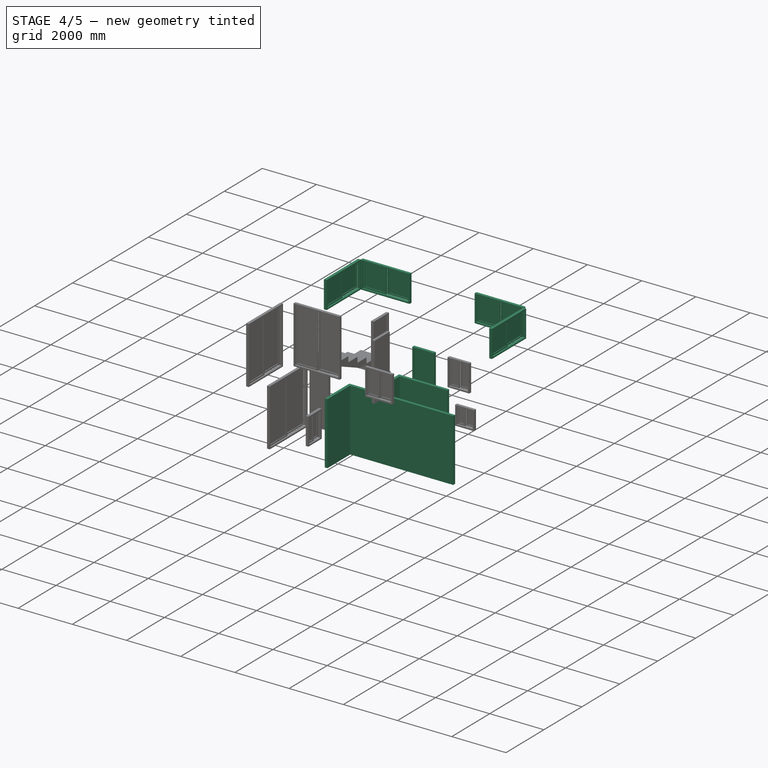
[diagram: stage 4 of 5 — iso view after this stage's code; geometry added in this stage tinted green]
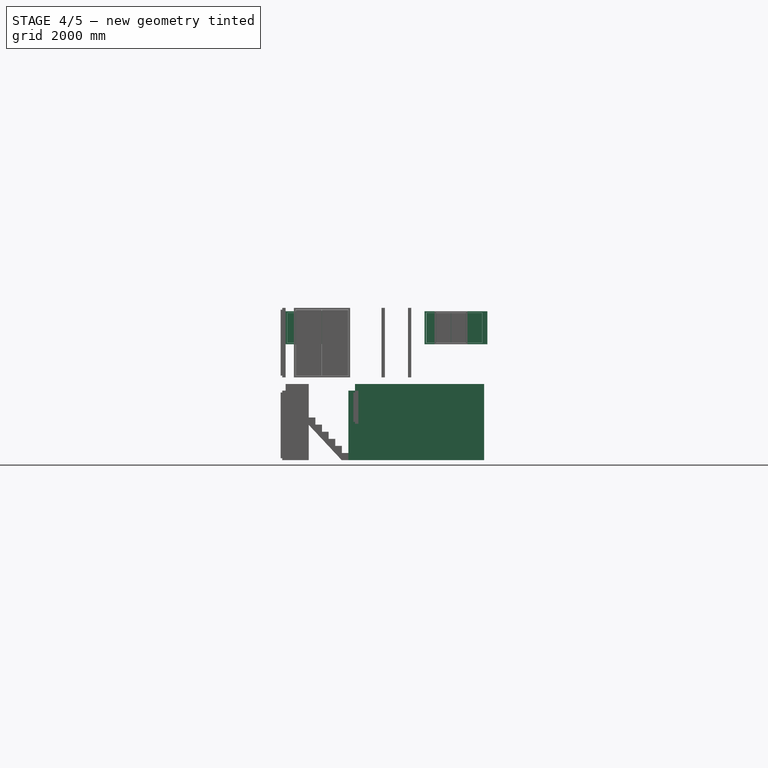
[diagram: stage 4 of 5 — front view after this stage's code; geometry added in this stage tinted green]
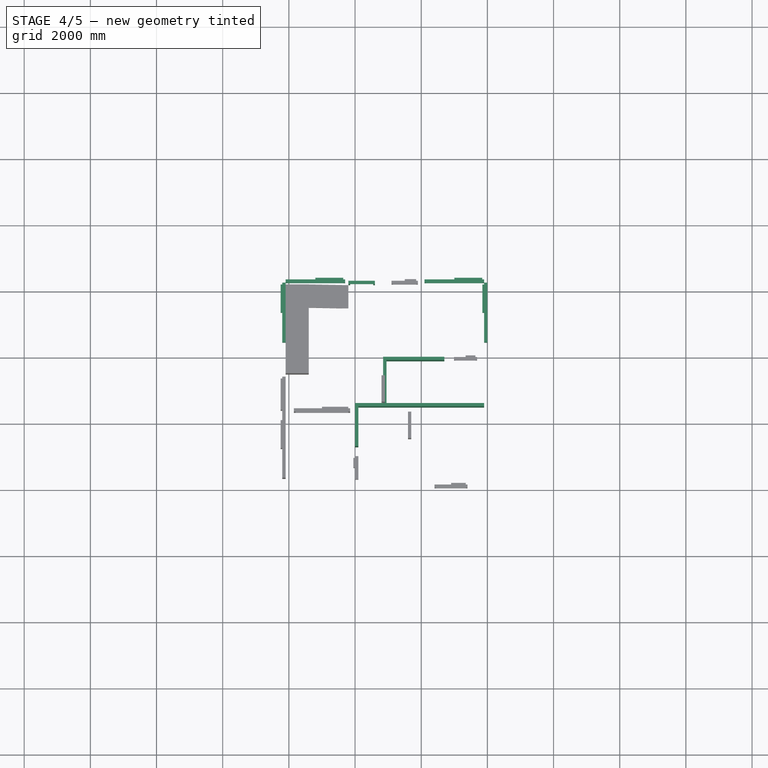
[diagram: stage 4 of 5 — top view after this stage's code; geometry added in this stage tinted green]
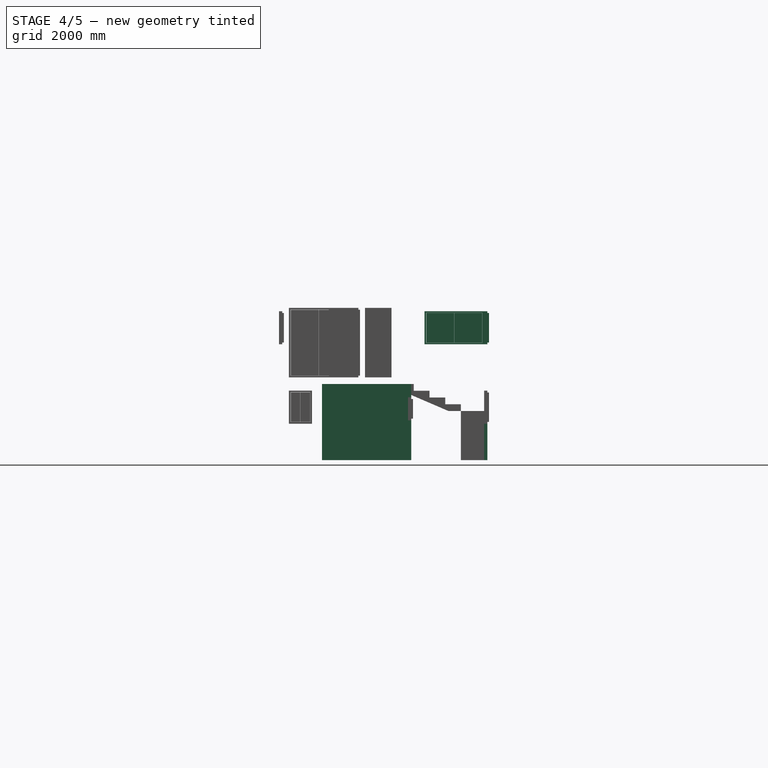
[diagram: stage 4 of 5 — right view after this stage's code; geometry added in this stage tinted green]
FEATURE [Sketcher::SketchObject] Sketch003  label="S Wall Interior Level 1"
  ArcFitTolerance = 1e-06
  FullyConstrained = true
  MakeInternals = false
  sketch-geometry (21):
    g0: LineSegment StartX=-3150 StartY=3900 StartZ=0 EndX=-3150 EndY=2600 EndZ=0
    g1: LineSegment StartX=-3150 StartY=2600 StartZ=0 EndX=-3900 EndY=2600 EndZ=0
    g2: GeomPoint X=-3870 Y=2600 Z=0
    g3: GeomPoint X=-3170 Y=2600 Z=0
    g4: GeomPoint X=-3150 Y=2700 Z=0
    g5: GeomPoint X=-3150 Y=3400 Z=0
    g6: LineSegment [constr] StartX=-3150 StartY=2600 StartZ=0 EndX=-100 EndY=2600 EndZ=0
    g7: LineSegment [constr] StartX=-3150 StartY=2600 StartZ=0 EndX=-3150 EndY=2500 EndZ=0
    g8: LineSegment StartX=-3150 StartY=2500 StartZ=0 EndX=-100 EndY=2500 EndZ=0
    g9: LineSegment StartX=-3150 StartY=3900 StartZ=0 EndX=-1300 EndY=3900 EndZ=0
    g10: GeomPoint X=-3900 Y=2600 Z=0
    g11: LineSegment StartX=-3870 StartY=2600 StartZ=0 EndX=-4000 EndY=2600 EndZ=0
    g12: LineSegment StartX=-4000 StartY=2600 StartZ=0 EndX=-4000 EndY=1300 EndZ=0
    g13: LineSegment [constr] StartX=-3150 StartY=2500 StartZ=0 EndX=-3900 EndY=2500 EndZ=0
    g14: LineSegment [constr] StartX=-3900 StartY=2500 StartZ=0 EndX=-3900 EndY=1300 EndZ=0
    g15: GeomPoint X=-3050 Y=3900 Z=0
    g16: GeomPoint X=-3050 Y=2600 Z=0
    g17: LineSegment [constr] StartX=-3050 StartY=2600 StartZ=0 EndX=-3050 EndY=3900 EndZ=0
    g18: LineSegment [constr] StartX=-3150 StartY=3900 StartZ=0 EndX=-3150 EndY=4000 EndZ=0
    g19: LineSegment [constr] StartX=-3150 StartY=4000 StartZ=0 EndX=-1300 EndY=4000 EndZ=0
    g20: LineSegment [constr] StartX=-1300 StartY=4000 StartZ=0 EndX=-1300 EndY=3900 EndZ=0
  constraints (55):
    c: Vertical(g0)
    c: Coincident(g1,g0)
    c: Horizontal(g1)
    c: DistanceY(g0,g0) = 1300
    c: DistanceX(g1,g1) = 750
    c: PointOnObject(g2,g1)
    c: PointOnObject(g3,g1)
    c: PointOnObject(g4,g0)
    c: PointOnObject(g5,g0)
    c: DistanceX(g1,g2) = 30
    c: DistanceX(g2,g3) = 700
    c: DistanceY(g0,g4) = 100
    c: DistanceY(g4,g5) = 700
    c: Coincident(g6,g0)
    c: Horizontal(g6)
    c: DistanceX(g6,g-1) = 100
    c: Distance(g7) = 100
    c: Coincident(g7,g0)
    c: Vertical(g7)
    c: Coincident(g8,g7)
    c: Horizontal(g8)
    c: DistanceX(g8,g8) = 3050
    c: Distance(g9) = 1850
    c: Coincident(g9,g0)
    c: Horizontal(g9)
    c: Coincident(g10,g1)
    c: Coincident(g11,g2)
    c: Horizontal(g11)
    c: Coincident(g12,g11)
    c: DistanceY(g-1,g12) = 1300
    c: DistanceX(g12,g-1) = 4000
    c: Distance(g13) = 750
    c: Horizontal(g13)
    c: Coincident(g13,g7)
    c: Distance(g14) = 1200
    c: Vertical(g14)
    c: Coincident(g14,g13)
    c: DistanceX(g11,g13) = 100
    c: DistanceY(g12,g12) = 1300
    c: DistanceX(g12,g14) = 100
    c: PointOnObject(g15,g9)
    c: PointOnObject(g16,g6)
    c: DistanceX(g0,g16) = 100
    c: DistanceX(g0,g15) = 100
    c: Coincident(g17,g16)
    c: Coincident(g17,g15)
    c: Distance(g18) = 100
    c: Coincident(g18,g0)
    c: Vertical(g18)
    c: Distance(g19) = 1850
    c: Coincident(g19,g18)
    c: Horizontal(g19)
    c: Coincident(g20,g19)
    c: Coincident(g20,g9)
    c: DistanceX(g15,g9) = 1750
FEATURE [Part::FeaturePython] Wall001  label="Wall Interior"  # Arch/BIM 166 (typed FeaturePython)
  Align = 1
  ArchSketchData = true
  Area = 19274000
  Base = -> Sketch003
  BlockHeight = 0
  BlockLength = 0
  CountBroken = 0
  CountEntire = 0
  Face = 0
  Height = 2300
  HorizontalArea = 0
  IfcData = attributes={"GlobalId": {"name": "GlobalId", "type": "IfcGloballyUniqueId", "is_enum": false, "enum_values": []}, "Description": {"... (+533 chars omitted),+1 more (map truncated)
  IfcType = 166
  Joint = 0
  Length = 8380
  MakeBlocks = false
  MoveBase = false
  MoveWithHost = false
  Normal = (0,0,0)
  OffsetFirst = 0
  OffsetSecond = 0
  PerimeterLength = 0
  PredefinedType = 0
  VerticalArea = 0
  Width = 100
FEATURE [App::DocumentObjectGroup] Group002  label="Wall Level 2"
  Group = -> [Wall003,Wall004]
FEATURE [App::GeometryPython] BuildingPart003  label="Level 2"  # Arch/BIM 14 (typed FeaturePython)
  Area = 0
  CompositionType = 0
  Elevation = 2300
  Group = -> [Structure002,Group002]
  Height = 0
  HeightPropagate = true
  IfcData = attributes={"GlobalId": {"name": "GlobalId", "type": "IfcGloballyUniqueId", "is_enum": false, "enum_values": []}, "Description": {"... (+862 chars omitted),+1 more (map truncated)
  IfcType = 14
  LevelOffset = 0
  LongName = Level
  MaterialsTable = Undefined=0,1,2,3,4,5,6,7,8,9,10,11,12,13,14,15,16,17,18,19,20,21,22,23,24,25,26,27,28,29,30,31,32,33,34,35,36,37,38,39,40,41,42
  OnlySolids = true
  Placement = pos=(0,0,2300) rot=(0,0,1;0rad)
  expr: Elevation = .Placement.Base.z
FEATURE [Sketcher::SketchObject] Sketch042
  ArcFitTolerance = 1e-06
  FullyConstrained = true
  MakeInternals = false
  Placement = pos=(-4200,6200,0) rot=(1,0,0;1.5708rad)
  sketch-geometry (8):
    g0: LineSegment StartX=0 StartY=0 StartZ=0 EndX=800 EndY=0 EndZ=0
    g1: LineSegment StartX=800 StartY=0 StartZ=0 EndX=800 EndY=2100 EndZ=0
    g2: LineSegment StartX=800 StartY=2100 StartZ=0 EndX=0 EndY=2100 EndZ=0
    g3: LineSegment StartX=0 StartY=2100 StartZ=0 EndX=0 EndY=0 EndZ=0
    g4: LineSegment StartX=50 StartY=0 StartZ=0 EndX=750 EndY=0 EndZ=0
    g5: LineSegment StartX=750 StartY=0 StartZ=0 EndX=750 EndY=2050 EndZ=0
    g6: LineSegment StartX=750 StartY=2050 StartZ=0 EndX=50 EndY=2050 EndZ=0
    g7: LineSegment StartX=50 StartY=2050 StartZ=0 EndX=50 EndY=0 EndZ=0
  constraints (23):
    c: Coincident(g0,g1)
    c: Coincident(g1,g2)
    c: Coincident(g2,g3)
    c: Coincident(g3,g0)
    c: Horizontal(g0)
    c: Horizontal(g2)
    c: Vertical(g1)
    c: Vertical(g3)
    c: Coincident(g4,g5)
    c: Coincident(g5,g6)
    c: Coincident(g6,g7)
    c: Coincident(g7,g4)
    c: Horizontal(g4)
    c: Horizontal(g6)
    c: Vertical(g5)
    c: Vertical(g7)
    c: DistanceY(g1) = 2100  'Height'
    c: DistanceX(g0) = 800  'Width'
    c: DistanceY(g6,g2) = 50  'Frame1'
    c: DistanceX(g2,g6) = 50  'Frame2'
    c: DistanceX(g4,g0) = 50  'Frame3'
    c: DistanceY(g0,g4) = 0
    c: Coincident(g0,g-1)
FEATURE [Part::FeaturePython] Window022  label="Door010"  # Arch/BIM 41 (typed FeaturePython)
  Area = 1680000
  Base = -> Sketch042
  Frame = 50
  Height = 2100
  HoleDepth = 0
  HoleWire = 0
  HorizontalArea = 0
  Hosts = -> [Wall]
  IfcData = attributes={"GlobalId": {"name": "GlobalId", "type": "IfcGloballyUniqueId", "is_enum": false, "enum_values": []}, "Description": {"... (+1933 chars omitted),+1 more (map truncated)
  IfcType = 41
  LouvreSpacing = 0
  LouvreWidth = 0
  MoveBase = false
  MoveWithHost = true
  Normal = (0,1,-2e-16)
  Opening = 0
  OperationType = 0
  OverallHeight = 2100
  OverallWidth = 800
  PerimeterLength = 0
  PredefinedType = 0
  Preset = 6
  SymbolElevation = false
  SymbolPlan = false
  VerticalArea = 0
  Width = 800
  WindowParts = OuterFrame | Frame | Wire0,Wire1 | 50.0+V | 0.00+V | Door | Solid panel | Wire1,Edge8,Mode1 | 50.0 | 50.0+V
  expr: OverallHeight = .Height.Value
  expr: OverallWidth = .Width.Value
FEATURE [Sketcher::SketchObject] Sketch043
  ArcFitTolerance = 1e-06
  FullyConstrained = true
  MakeInternals = false
  Placement = pos=(-6100,4400,2500) rot=(0.57735,0.57735,0.57735;2.0944rad)
  sketch-geometry (24):
    g0: LineSegment StartX=0 StartY=0 StartZ=0 EndX=1800 EndY=0 EndZ=0
    g1: LineSegment StartX=1800 StartY=0 StartZ=0 EndX=1800 EndY=1000 EndZ=0
    g2: LineSegment StartX=1800 StartY=1000 StartZ=0 EndX=0 EndY=1000 EndZ=0
    g3: LineSegment StartX=0 StartY=1000 StartZ=0 EndX=0 EndY=0 EndZ=0
    g4: LineSegment StartX=50 StartY=50 StartZ=0 EndX=1750 EndY=50 EndZ=0
    g5: LineSegment StartX=1750 StartY=50 StartZ=0 EndX=1750 EndY=950 EndZ=0
    g6: LineSegment StartX=1750 StartY=950 StartZ=0 EndX=50 EndY=950 EndZ=0
    g7: LineSegment StartX=50 StartY=950 StartZ=0 EndX=50 EndY=50 EndZ=0
    g8: LineSegment StartX=55 StartY=55 StartZ=0 EndX=897.5 EndY=55 EndZ=0
    g9: LineSegment StartX=897.5 StartY=55 StartZ=0 EndX=897.5 EndY=945 EndZ=0
    g10: LineSegment StartX=897.5 StartY=945 StartZ=0 EndX=55 EndY=945 EndZ=0
    g11: LineSegment StartX=55 StartY=945 StartZ=0 EndX=55 EndY=55 EndZ=0
    g12: LineSegment StartX=105 StartY=105 StartZ=0 EndX=847.5 EndY=105 EndZ=0
    g13: LineSegment StartX=847.5 StartY=105 StartZ=0 EndX=847.5 EndY=895 EndZ=0
    g14: LineSegment StartX=847.5 StartY=895 StartZ=0 EndX=105 EndY=895 EndZ=0
    g15: LineSegment StartX=105 StartY=895 StartZ=0 EndX=105 EndY=105 EndZ=0
    g16: LineSegment StartX=902.5 StartY=55 StartZ=0 EndX=1745 EndY=55 EndZ=0
    g17: LineSegment StartX=1745 StartY=55 StartZ=0 EndX=1745 EndY=945 EndZ=0
    g18: LineSegment StartX=1745 StartY=945 StartZ=0 EndX=902.5 EndY=945 EndZ=0
    g19: LineSegment StartX=902.5 StartY=945 StartZ=0 EndX=902.5 EndY=55 EndZ=0
    g20: LineSegment StartX=952.5 StartY=105 StartZ=0 EndX=1695 EndY=105 EndZ=0
    g21: LineSegment StartX=1695 StartY=105 StartZ=0 EndX=1695 EndY=895 EndZ=0
    g22: LineSegment StartX=1695 StartY=895 StartZ=0 EndX=952.5 EndY=895 EndZ=0
    g23: LineSegment StartX=952.5 StartY=895 StartZ=0 EndX=952.5 EndY=105 EndZ=0
  constraints (71):
    c: Coincident(g0,g1)
    c: Coincident(g1,g2)
    c: Coincident(g2,g3)
    c: Coincident(g3,g0)
    c: Horizontal(g0)
    c: Horizontal(g2)
    c: Vertical(g1)
    c: Vertical(g3)
    c: Coincident(g4,g5)
    c: Coincident(g5,g6)
    c: Coincident(g6,g7)
    c: Coincident(g7,g4)
    c: Horizontal(g4)
    c: Horizontal(g6)
    c: Vertical(g5)
    c: Vertical(g7)
    c: DistanceY(g1) = 1000  'Height'
    c: DistanceX(g0) = 1800  'Width'
    c: DistanceY(g6,g2) = 50  'Frame1'
    c: DistanceX(g2,g6) = 50  'Frame2'
    c: DistanceX(g4,g0) = 50  'Frame3'
    c: DistanceY(g0,g4) = 50  'Frame4'
    c: Coincident(g0,g-1)
    c: Coincident(g8,g9)
    c: Coincident(g9,g10)
    c: Coincident(g10,g11)
    c: Coincident(g11,g8)
    c: Horizontal(g8)
    c: Horizontal(g10)
    c: Vertical(g9)
    c: Vertical(g11)
    c: Coincident(g12,g13)
    c: Coincident(g13,g14)
    c: Coincident(g14,g15)
    c: Coincident(g15,g12)
    c: Horizontal(g12)
    c: Horizontal(g14)
    c: Vertical(g13)
    c: Vertical(g15)
    c: Coincident(g16,g17)
    c: Coincident(g17,g18)
    c: Coincident(g18,g19)
    c: Coincident(g19,g16)
    c: Horizontal(g16)
    c: Horizontal(g18)
    c: Vertical(g17)
    c: Vertical(g19)
    c: Coincident(g20,g21)
    c: Coincident(g21,g22)
    c: Coincident(g22,g23)
    c: Coincident(g23,g20)
    c: Horizontal(g20)
    c: Horizontal(g22)
    c: Vertical(g21)
    c: Vertical(g23)
    c: DistanceY(g8,g12) = 50  'Frame5'
    c: DistanceX(g8,g12) = 50  'Frame6'
    c: DistanceX(g21,g17) = 50  'Frame7'
    c: DistanceY(g21,g17) = 50  'Frame8'
    c: DistanceX(g16,g20) = 50  'Frame9'
    c: DistanceX(g14,g10) = 50  'Frame10'
    c: Equal(g22,g14)
    c: DistanceY(g8,g16) = 0
    c: DistanceY(g10,g18) = 0
    c: DistanceX(g4,g8) = 5
    c: DistanceY(g4,g8) = 5
    c: DistanceX(g6,g18) = -5
    c: DistanceY(g6,g18) = -5
    c: DistanceX(g9,g19) = 5
    c: PointOnObject(g13,g22)
    c: PointOnObject(g12,g20)
FEATURE [Part::FeaturePython] Window023  label="Window"  # Arch/BIM 170 (typed FeaturePython)
  Area = 1800000
  Base = -> Sketch043
  Frame = 50
  Height = 1000
  HoleDepth = 0
  HoleWire = 0
  HorizontalArea = 0
  Hosts = -> [Wall004]
  IfcData = attributes={"GlobalId": {"name": "GlobalId", "type": "IfcGloballyUniqueId", "is_enum": false, "enum_values": []}, "Description": {"... (+1231 chars omitted),+1 more (map truncated)
  IfcType = 170
  LouvreSpacing = 0
  LouvreWidth = 0
  MoveBase = false
  MoveWithHost = true
  Normal = (-1,0,0)
  Opening = 0
  OverallHeight = 1000
  OverallWidth = 1800
  PartitioningType = 0
  PerimeterLength = 0
  Placement = pos=(0,0,1000) rot=(0,0,1;0rad)
  PredefinedType = 0
  Preset = 5
  SymbolElevation = false
  SymbolPlan = false
  VerticalArea = 0
  Width = 1800
  WindowParts = OuterFrame | Frame | Wire0,Wire1 | 50.0+V | 0.00+V | LeftFrame | Frame | Wire2,Wire3 | 50.0 | 50.0+V | LeftGlass | Glass panel | Wire3 | 5.0 | 75.0+V | RightFrame | Frame | Wire4,Wire5 | 50.0 | 100.0+V | RightGlass | Glass panel | Wire5 | 5.0 | 125.0+V
  expr: OverallHeight = .Height.Value
  expr: OverallWidth = .Width.Value
FEATURE [Sketcher::SketchObject] Sketch044
  ArcFitTolerance = 1e-06
  FullyConstrained = true
  MakeInternals = false
  Placement = pos=(-6100,6200,2500) rot=(1,0,0;1.5708rad)
  sketch-geometry (24):
    g0: LineSegment StartX=0 StartY=0 StartZ=0 EndX=1800 EndY=0 EndZ=0
    g1: LineSegment StartX=1800 StartY=0 StartZ=0 EndX=1800 EndY=1000 EndZ=0
    g2: LineSegment StartX=1800 StartY=1000 StartZ=0 EndX=0 EndY=1000 EndZ=0
    g3: LineSegment StartX=0 StartY=1000 StartZ=0 EndX=0 EndY=0 EndZ=0
    g4: LineSegment StartX=50 StartY=50 StartZ=0 EndX=1750 EndY=50 EndZ=0
    g5: LineSegment StartX=1750 StartY=50 StartZ=0 EndX=1750 EndY=950 EndZ=0
    g6: LineSegment StartX=1750 StartY=950 StartZ=0 EndX=50 EndY=950 EndZ=0
    g7: LineSegment StartX=50 StartY=950 StartZ=0 EndX=50 EndY=50 EndZ=0
    g8: LineSegment StartX=55 StartY=55 StartZ=0 EndX=897.5 EndY=55 EndZ=0
    g9: LineSegment StartX=897.5 StartY=55 StartZ=0 EndX=897.5 EndY=945 EndZ=0
    g10: LineSegment StartX=897.5 StartY=945 StartZ=0 EndX=55 EndY=945 EndZ=0
    g11: LineSegment StartX=55 StartY=945 StartZ=0 EndX=55 EndY=55 EndZ=0
    g12: LineSegment StartX=105 StartY=105 StartZ=0 EndX=847.5 EndY=105 EndZ=0
    g13: LineSegment StartX=847.5 StartY=105 StartZ=0 EndX=847.5 EndY=895 EndZ=0
    g14: LineSegment StartX=847.5 StartY=895 StartZ=0 EndX=105 EndY=895 EndZ=0
    g15: LineSegment StartX=105 StartY=895 StartZ=0 EndX=105 EndY=105 EndZ=0
    g16: LineSegment StartX=902.5 StartY=55 StartZ=0 EndX=1745 EndY=55 EndZ=0
    g17: LineSegment StartX=1745 StartY=55 StartZ=0 EndX=1745 EndY=945 EndZ=0
    g18: LineSegment StartX=1745 StartY=945 StartZ=0 EndX=902.5 EndY=945 EndZ=0
    g19: LineSegment StartX=902.5 StartY=945 StartZ=0 EndX=902.5 EndY=55 EndZ=0
    g20: LineSegment StartX=952.5 StartY=105 StartZ=0 EndX=1695 EndY=105 EndZ=0
    g21: LineSegment StartX=1695 StartY=105 StartZ=0 EndX=1695 EndY=895 EndZ=0
    g22: LineSegment StartX=1695 StartY=895 StartZ=0 EndX=952.5 EndY=895 EndZ=0
    g23: LineSegment StartX=952.5 StartY=895 StartZ=0 EndX=952.5 EndY=105 EndZ=0
  constraints (71):
    c: Coincident(g0,g1)
    c: Coincident(g1,g2)
    c: Coincident(g2,g3)
    c: Coincident(g3,g0)
    c: Horizontal(g0)
    c: Horizontal(g2)
    c: Vertical(g1)
    c: Vertical(g3)
    c: Coincident(g4,g5)
    c: Coincident(g5,g6)
    c: Coincident(g6,g7)
    c: Coincident(g7,g4)
    c: Horizontal(g4)
    c: Horizontal(g6)
    c: Vertical(g5)
    c: Vertical(g7)
    c: DistanceY(g1) = 1000  'Height'
    c: DistanceX(g0) = 1800  'Width'
    c: DistanceY(g6,g2) = 50  'Frame1'
    c: DistanceX(g2,g6) = 50  'Frame2'
    c: DistanceX(g4,g0) = 50  'Frame3'
    c: DistanceY(g0,g4) = 50  'Frame4'
    c: Coincident(g0,g-1)
    c: Coincident(g8,g9)
    c: Coincident(g9,g10)
    c: Coincident(g10,g11)
    c: Coincident(g11,g8)
    c: Horizontal(g8)
    c: Horizontal(g10)
    c: Vertical(g9)
    c: Vertical(g11)
    c: Coincident(g12,g13)
    c: Coincident(g13,g14)
    c: Coincident(g14,g15)
    c: Coincident(g15,g12)
    c: Horizontal(g12)
    c: Horizontal(g14)
    c: Vertical(g13)
    c: Vertical(g15)
    c: Coincident(g16,g17)
    c: Coincident(g17,g18)
    c: Coincident(g18,g19)
    c: Coincident(g19,g16)
    c: Horizontal(g16)
    c: Horizontal(g18)
    c: Vertical(g17)
    c: Vertical(g19)
    c: Coincident(g20,g21)
    c: Coincident(g21,g22)
    c: Coincident(g22,g23)
    c: Coincident(g23,g20)
    c: Horizontal(g20)
    c: Horizontal(g22)
    c: Vertical(g21)
    c: Vertical(g23)
    c: DistanceY(g8,g12) = 50  'Frame5'
    c: DistanceX(g8,g12) = 50  'Frame6'
    c: DistanceX(g21,g17) = 50  'Frame7'
    c: DistanceY(g21,g17) = 50  'Frame8'
    c: DistanceX(g16,g20) = 50  'Frame9'
    c: DistanceX(g14,g10) = 50  'Frame10'
    c: Equal(g22,g14)
    c: DistanceY(g8,g16) = 0
    c: DistanceY(g10,g18) = 0
    c: DistanceX(g4,g8) = 5
    c: DistanceY(g4,g8) = 5
    c: DistanceX(g6,g18) = -5
    c: DistanceY(g6,g18) = -5
    c: DistanceX(g9,g19) = 5
    c: PointOnObject(g13,g22)
    c: PointOnObject(g12,g20)
FEATURE [Part::FeaturePython] Window024  # Arch/BIM 170 (typed FeaturePython)
  Area = 1800000
  Base = -> Sketch044
  Frame = 50
  Height = 1000
  HoleDepth = 0
  HoleWire = 0
  HorizontalArea = 0
  Hosts = -> [Wall004]
  IfcData = attributes={"GlobalId": {"name": "GlobalId", "type": "IfcGloballyUniqueId", "is_enum": false, "enum_values": []}, "Description": {"... (+1231 chars omitted),+1 more (map truncated)
  IfcType = 170
  LouvreSpacing = 0
  LouvreWidth = 0
  MoveBase = false
  MoveWithHost = true
  Normal = (0,1,-2e-16)
  Opening = 0
  OverallHeight = 1000
  OverallWidth = 1800
  PartitioningType = 0
  PerimeterLength = 0
  Placement = pos=(0,0,1000) rot=(0,0,1;0rad)
  PredefinedType = 0
  Preset = 5
  SymbolElevation = false
  SymbolPlan = false
  VerticalArea = 0
  Width = 1800
  WindowParts = <same value as first occurrence — deduplicated (x11 in doc)>
  expr: OverallHeight = .Height.Value
  expr: OverallWidth = .Width.Value
FEATURE [Sketcher::SketchObject] Sketch046
  ArcFitTolerance = 1e-06
  FullyConstrained = true
  MakeInternals = false
  Placement = pos=(0,4400,2500) rot=(0.57735,0.57735,0.57735;2.0944rad)
  sketch-geometry (24):
    g0: LineSegment StartX=0 StartY=0 StartZ=0 EndX=1800 EndY=0 EndZ=0
    g1: LineSegment StartX=1800 StartY=0 StartZ=0 EndX=1800 EndY=1000 EndZ=0
    g2: LineSegment StartX=1800 StartY=1000 StartZ=0 EndX=0 EndY=1000 EndZ=0
    g3: LineSegment StartX=0 StartY=1000 StartZ=0 EndX=0 EndY=0 EndZ=0
    g4: LineSegment StartX=50 StartY=50 StartZ=0 EndX=1750 EndY=50 EndZ=0
    g5: LineSegment StartX=1750 StartY=50 StartZ=0 EndX=1750 EndY=950 EndZ=0
    g6: LineSegment StartX=1750 StartY=950 StartZ=0 EndX=50 EndY=950 EndZ=0
    g7: LineSegment StartX=50 StartY=950 StartZ=0 EndX=50 EndY=50 EndZ=0
    g8: LineSegment StartX=55 StartY=55 StartZ=0 EndX=897.5 EndY=55 EndZ=0
    g9: LineSegment StartX=897.5 StartY=55 StartZ=0 EndX=897.5 EndY=945 EndZ=0
    g10: LineSegment StartX=897.5 StartY=945 StartZ=0 EndX=55 EndY=945 EndZ=0
    g11: LineSegment StartX=55 StartY=945 StartZ=0 EndX=55 EndY=55 EndZ=0
    g12: LineSegment StartX=105 StartY=105 StartZ=0 EndX=847.5 EndY=105 EndZ=0
    g13: LineSegment StartX=847.5 StartY=105 StartZ=0 EndX=847.5 EndY=895 EndZ=0
    g14: LineSegment StartX=847.5 StartY=895 StartZ=0 EndX=105 EndY=895 EndZ=0
    g15: LineSegment StartX=105 StartY=895 StartZ=0 EndX=105 EndY=105 EndZ=0
    g16: LineSegment StartX=902.5 StartY=55 StartZ=0 EndX=1745 EndY=55 EndZ=0
    g17: LineSegment StartX=1745 StartY=55 StartZ=0 EndX=1745 EndY=945 EndZ=0
    g18: LineSegment StartX=1745 StartY=945 StartZ=0 EndX=902.5 EndY=945 EndZ=0
    g19: LineSegment StartX=902.5 StartY=945 StartZ=0 EndX=902.5 EndY=55 EndZ=0
    g20: LineSegment StartX=952.5 StartY=105 StartZ=0 EndX=1695 EndY=105 EndZ=0
    g21: LineSegment StartX=1695 StartY=105 StartZ=0 EndX=1695 EndY=895 EndZ=0
    g22: LineSegment StartX=1695 StartY=895 StartZ=0 EndX=952.5 EndY=895 EndZ=0
    g23: LineSegment StartX=952.5 StartY=895 StartZ=0 EndX=952.5 EndY=105 EndZ=0
  constraints (71):
    c: Coincident(g0,g1)
    c: Coincident(g1,g2)
    c: Coincident(g2,g3)
    c: Coincident(g3,g0)
    c: Horizontal(g0)
    c: Horizontal(g2)
    c: Vertical(g1)
    c: Vertical(g3)
    c: Coincident(g4,g5)
    c: Coincident(g5,g6)
    c: Coincident(g6,g7)
    c: Coincident(g7,g4)
    c: Horizontal(g4)
    c: Horizontal(g6)
    c: Vertical(g5)
    c: Vertical(g7)
    c: DistanceY(g1) = 1000  'Height'
    c: DistanceX(g0) = 1800  'Width'
    c: DistanceY(g6,g2) = 50  'Frame1'
    c: DistanceX(g2,g6) = 50  'Frame2'
    c: DistanceX(g4,g0) = 50  'Frame3'
    c: DistanceY(g0,g4) = 50  'Frame4'
    c: Coincident(g0,g-1)
    c: Coincident(g8,g9)
    c: Coincident(g9,g10)
    c: Coincident(g10,g11)
    c: Coincident(g11,g8)
    c: Horizontal(g8)
    c: Horizontal(g10)
    c: Vertical(g9)
    c: Vertical(g11)
    c: Coincident(g12,g13)
    c: Coincident(g13,g14)
    c: Coincident(g14,g15)
    c: Coincident(g15,g12)
    c: Horizontal(g12)
    c: Horizontal(g14)
    c: Vertical(g13)
    c: Vertical(g15)
    c: Coincident(g16,g17)
    c: Coincident(g17,g18)
    c: Coincident(g18,g19)
    c: Coincident(g19,g16)
    c: Horizontal(g16)
    c: Horizontal(g18)
    c: Vertical(g17)
    c: Vertical(g19)
    c: Coincident(g20,g21)
    c: Coincident(g21,g22)
    c: Coincident(g22,g23)
    c: Coincident(g23,g20)
    c: Horizontal(g20)
    c: Horizontal(g22)
    c: Vertical(g21)
    c: Vertical(g23)
    c: DistanceY(g8,g12) = 50  'Frame5'
    c: DistanceX(g8,g12) = 50  'Frame6'
    c: DistanceX(g21,g17) = 50  'Frame7'
    c: DistanceY(g21,g17) = 50  'Frame8'
    c: DistanceX(g16,g20) = 50  'Frame9'
    c: DistanceX(g14,g10) = 50  'Frame10'
    c: Equal(g22,g14)
    c: DistanceY(g8,g16) = 0
    c: DistanceY(g10,g18) = 0
    c: DistanceX(g4,g8) = 5
    c: DistanceY(g4,g8) = 5
    c: DistanceX(g6,g18) = -5
    c: DistanceY(g6,g18) = -5
    c: DistanceX(g9,g19) = 5
    c: PointOnObject(g13,g22)
    c: PointOnObject(g12,g20)
FEATURE [Part::FeaturePython] Window025  # Arch/BIM 170 (typed FeaturePython)
  Area = 1800000
  Base = -> Sketch046
  Frame = 50
  Height = 1000
  HoleDepth = 0
  HoleWire = 0
  HorizontalArea = 0
  Hosts = -> [Wall004]
  IfcData = attributes={"GlobalId": {"name": "GlobalId", "type": "IfcGloballyUniqueId", "is_enum": false, "enum_values": []}, "Description": {"... (+1231 chars omitted),+1 more (map truncated)
  IfcType = 170
  LouvreSpacing = 0
  LouvreWidth = 0
  MoveBase = false
  MoveWithHost = true
  Normal = (-1,0,0)
  Opening = 0
  OverallHeight = 1000
  OverallWidth = 1800
  PartitioningType = 0
  PerimeterLength = 0
  Placement = pos=(0,0,1000) rot=(0,0,1;0rad)
  PredefinedType = 0
  Preset = 5
  SymbolElevation = false
  SymbolPlan = false
  VerticalArea = 0
  Width = 1800
  WindowParts = <same value as first occurrence — deduplicated (x11 in doc)>
  expr: OverallHeight = .Height.Value
  expr: OverallWidth = .Width.Value
FEATURE [Sketcher::SketchObject] Sketch047
  ArcFitTolerance = 1e-06
  FullyConstrained = true
  MakeInternals = false
  Placement = pos=(-1900,6200,2500) rot=(1,0,0;1.5708rad)
  sketch-geometry (24):
    g0: LineSegment StartX=0 StartY=0 StartZ=0 EndX=1800 EndY=0 EndZ=0
    g1: LineSegment StartX=1800 StartY=0 StartZ=0 EndX=1800 EndY=1000 EndZ=0
    g2: LineSegment StartX=1800 StartY=1000 StartZ=0 EndX=0 EndY=1000 EndZ=0
    g3: LineSegment StartX=0 StartY=1000 StartZ=0 EndX=0 EndY=0 EndZ=0
    g4: LineSegment StartX=50 StartY=50 StartZ=0 EndX=1750 EndY=50 EndZ=0
    g5: LineSegment StartX=1750 StartY=50 StartZ=0 EndX=1750 EndY=950 EndZ=0
    g6: LineSegment StartX=1750 StartY=950 StartZ=0 EndX=50 EndY=950 EndZ=0
    g7: LineSegment StartX=50 StartY=950 StartZ=0 EndX=50 EndY=50 EndZ=0
    g8: LineSegment StartX=55 StartY=55 StartZ=0 EndX=897.5 EndY=55 EndZ=0
    g9: LineSegment StartX=897.5 StartY=55 StartZ=0 EndX=897.5 EndY=945 EndZ=0
    g10: LineSegment StartX=897.5 StartY=945 StartZ=0 EndX=55 EndY=945 EndZ=0
    g11: LineSegment StartX=55 StartY=945 StartZ=0 EndX=55 EndY=55 EndZ=0
    g12: LineSegment StartX=105 StartY=105 StartZ=0 EndX=847.5 EndY=105 EndZ=0
    g13: LineSegment StartX=847.5 StartY=105 StartZ=0 EndX=847.5 EndY=895 EndZ=0
    g14: LineSegment StartX=847.5 StartY=895 StartZ=0 EndX=105 EndY=895 EndZ=0
    g15: LineSegment StartX=105 StartY=895 StartZ=0 EndX=105 EndY=105 EndZ=0
    g16: LineSegment StartX=902.5 StartY=55 StartZ=0 EndX=1745 EndY=55 EndZ=0
    g17: LineSegment StartX=1745 StartY=55 StartZ=0 EndX=1745 EndY=945 EndZ=0
    g18: LineSegment StartX=1745 StartY=945 StartZ=0 EndX=902.5 EndY=945 EndZ=0
    g19: LineSegment StartX=902.5 StartY=945 StartZ=0 EndX=902.5 EndY=55 EndZ=0
    g20: LineSegment StartX=952.5 StartY=105 StartZ=0 EndX=1695 EndY=105 EndZ=0
    g21: LineSegment StartX=1695 StartY=105 StartZ=0 EndX=1695 EndY=895 EndZ=0
    g22: LineSegment StartX=1695 StartY=895 StartZ=0 EndX=952.5 EndY=895 EndZ=0
    g23: LineSegment StartX=952.5 StartY=895 StartZ=0 EndX=952.5 EndY=105 EndZ=0
  constraints (71):
    c: Coincident(g0,g1)
    c: Coincident(g1,g2)
    c: Coincident(g2,g3)
    c: Coincident(g3,g0)
    c: Horizontal(g0)
    c: Horizontal(g2)
    c: Vertical(g1)
    c: Vertical(g3)
    c: Coincident(g4,g5)
    c: Coincident(g5,g6)
    c: Coincident(g6,g7)
    c: Coincident(g7,g4)
    c: Horizontal(g4)
    c: Horizontal(g6)
    c: Vertical(g5)
    c: Vertical(g7)
    c: DistanceY(g1) = 1000  'Height'
    c: DistanceX(g0) = 1800  'Width'
    c: DistanceY(g6,g2) = 50  'Frame1'
    c: DistanceX(g2,g6) = 50  'Frame2'
    c: DistanceX(g4,g0) = 50  'Frame3'
    c: DistanceY(g0,g4) = 50  'Frame4'
    c: Coincident(g0,g-1)
    c: Coincident(g8,g9)
    c: Coincident(g9,g10)
    c: Coincident(g10,g11)
    c: Coincident(g11,g8)
    c: Horizontal(g8)
    c: Horizontal(g10)
    c: Vertical(g9)
    c: Vertical(g11)
    c: Coincident(g12,g13)
    c: Coincident(g13,g14)
    c: Coincident(g14,g15)
    c: Coincident(g15,g12)
    c: Horizontal(g12)
    c: Horizontal(g14)
    c: Vertical(g13)
    c: Vertical(g15)
    c: Coincident(g16,g17)
    c: Coincident(g17,g18)
    c: Coincident(g18,g19)
    c: Coincident(g19,g16)
    c: Horizontal(g16)
    c: Horizontal(g18)
    c: Vertical(g17)
    c: Vertical(g19)
    c: Coincident(g20,g21)
    c: Coincident(g21,g22)
    c: Coincident(g22,g23)
    c: Coincident(g23,g20)
    c: Horizontal(g20)
    c: Horizontal(g22)
    c: Vertical(g21)
    c: Vertical(g23)
    c: DistanceY(g8,g12) = 50  'Frame5'
    c: DistanceX(g8,g12) = 50  'Frame6'
    c: DistanceX(g21,g17) = 50  'Frame7'
    c: DistanceY(g21,g17) = 50  'Frame8'
    c: DistanceX(g16,g20) = 50  'Frame9'
    c: DistanceX(g14,g10) = 50  'Frame10'
    c: Equal(g22,g14)
    c: DistanceY(g8,g16) = 0
    c: DistanceY(g10,g18) = 0
    c: DistanceX(g4,g8) = 5
    c: DistanceY(g4,g8) = 5
    c: DistanceX(g6,g18) = -5
    c: DistanceY(g6,g18) = -5
    c: DistanceX(g9,g19) = 5
    c: PointOnObject(g13,g22)
    c: PointOnObject(g12,g20)
FEATURE [Part::FeaturePython] Window026  # Arch/BIM 170 (typed FeaturePython)
  Area = 1800000
  Base = -> Sketch047
  Frame = 50
  Height = 1000
  HoleDepth = 0
  HoleWire = 0
  HorizontalArea = 0
  Hosts = -> [Wall004]
  IfcData = attributes={"GlobalId": {"name": "GlobalId", "type": "IfcGloballyUniqueId", "is_enum": false, "enum_values": []}, "Description": {"... (+1231 chars omitted),+1 more (map truncated)
  IfcType = 170
  LouvreSpacing = 0
  LouvreWidth = 0
  MoveBase = false
  MoveWithHost = true
  Normal = (0,1,-2e-16)
  Opening = 0
  OverallHeight = 1000
  OverallWidth = 1800
  PartitioningType = 0
  PerimeterLength = 0
  Placement = pos=(0,0,1000) rot=(0,0,1;0rad)
  PredefinedType = 0
  Preset = 5
  SymbolElevation = false
  SymbolPlan = false
  VerticalArea = 0
  Width = 1800
  WindowParts = <same value as first occurrence — deduplicated (x11 in doc)>
  expr: OverallHeight = .Height.Value
  expr: OverallWidth = .Width.Value
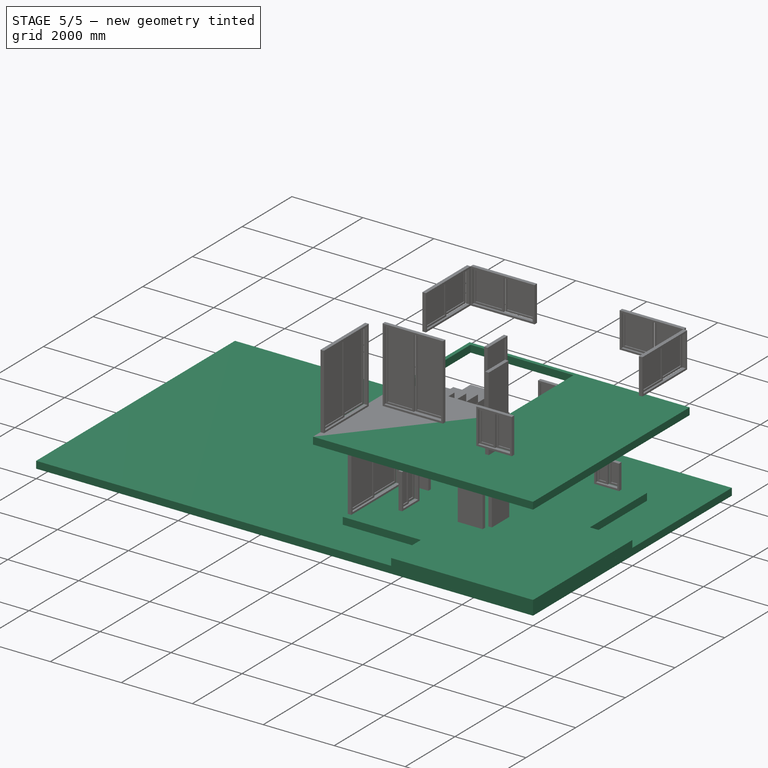
[diagram: stage 5 of 5 — iso view after this stage's code; geometry added in this stage tinted green]
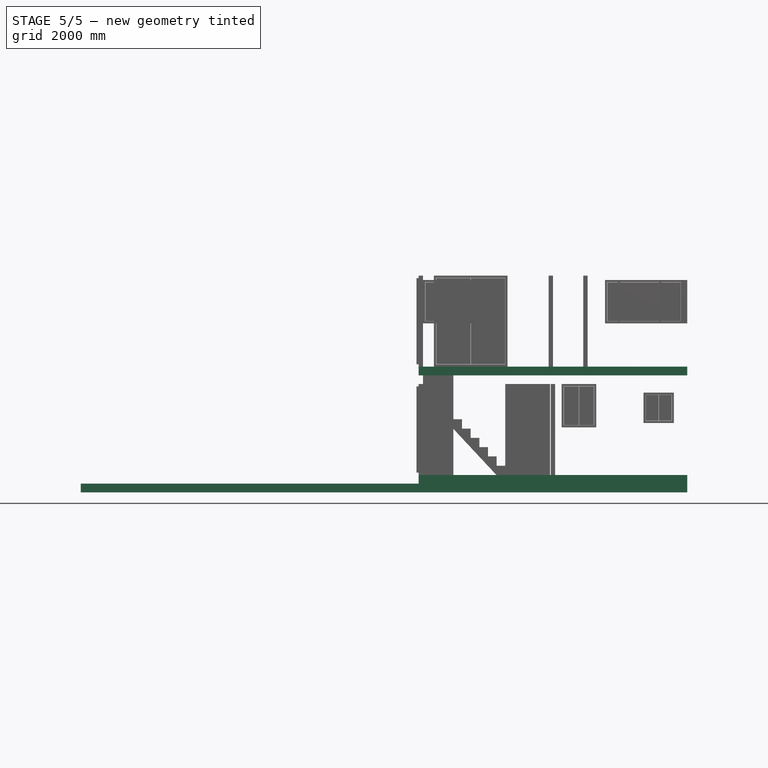
[diagram: stage 5 of 5 — front view after this stage's code; geometry added in this stage tinted green]
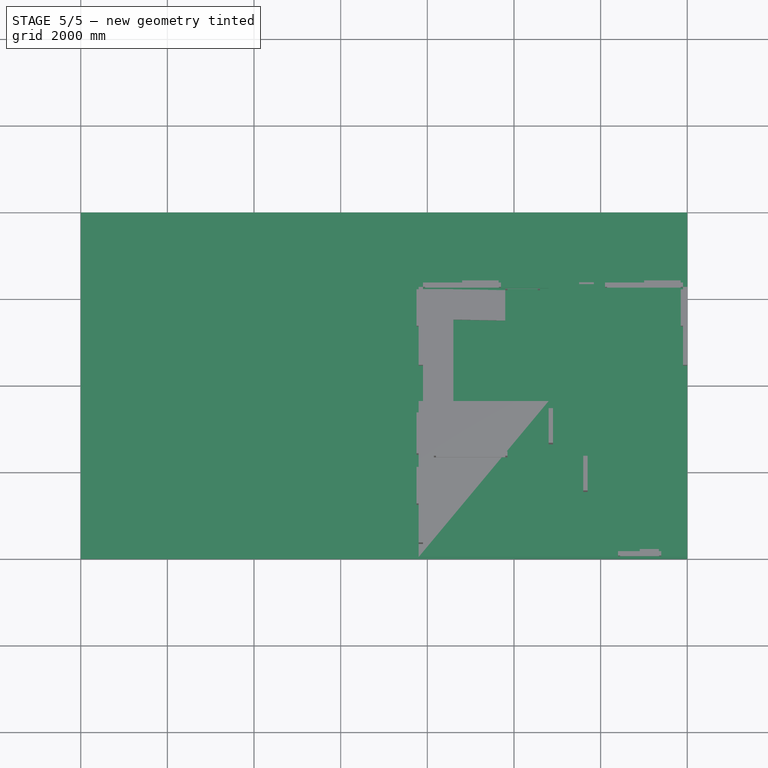
[diagram: stage 5 of 5 — top view after this stage's code; geometry added in this stage tinted green]
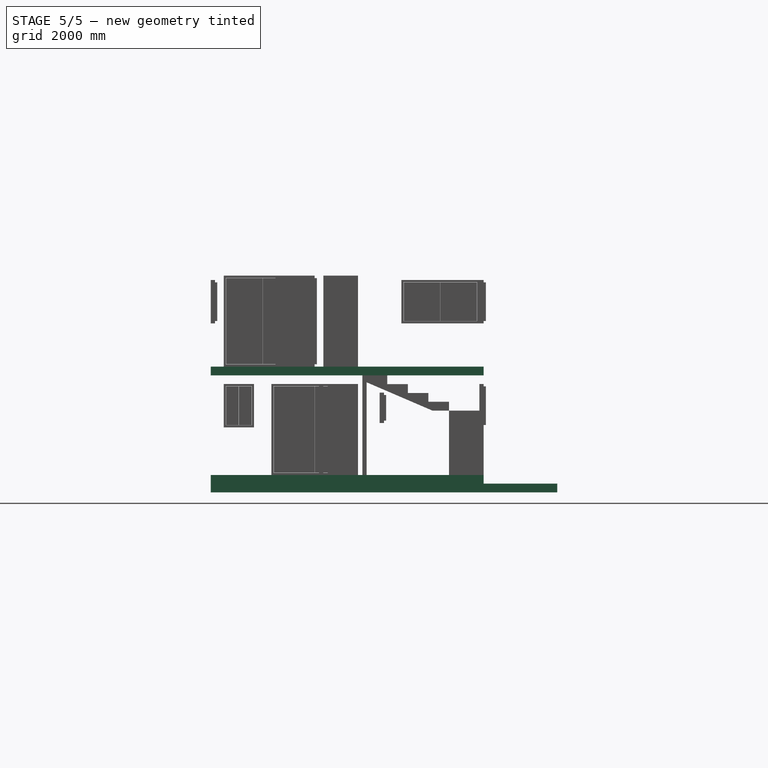
[diagram: stage 5 of 5 — right view after this stage's code; geometry added in this stage tinted green]
FEATURE [Sketcher::SketchObject] Sketch  label="S Slab Level 0"
  ArcFitTolerance = 1e-06
  FullyConstrained = true
  MakeInternals = false
  Placement = pos=(0,0,-200) rot=(0,0,1;0rad)
  sketch-geometry (4):
    g0: LineSegment StartX=0 StartY=0 StartZ=0 EndX=0 EndY=8000 EndZ=0
    g1: LineSegment StartX=0 StartY=8000 StartZ=0 EndX=-14000 EndY=8000 EndZ=0
    g2: LineSegment StartX=-14000 StartY=8000 StartZ=0 EndX=-14000 EndY=0 EndZ=0
    g3: LineSegment StartX=-14000 StartY=0 StartZ=0 EndX=0 EndY=0 EndZ=0
  constraints (11):
    c: Coincident(g0,g1)
    c: Coincident(g1,g2)
    c: Coincident(g2,g3)
    c: Coincident(g3,g0)
    c: Vertical(g0)
    c: Vertical(g2)
    c: Horizontal(g1)
    c: Horizontal(g3)
    c: Distance(g0,g2) = 14000
    c: Distance(g1,g3) = 8000
    c: Coincident(g0,g-1)
FEATURE [Part::FeaturePython] Structure  label="SlabLevel0"  # Arch/BIM 118 (typed FeaturePython)
  Base = -> Sketch
  BaseMirror = false
  BaseOffsetX = 0
  BaseOffsetY = 0
  BasePerpendicularToTool = false
  BaseRotation = 0
  ComputedLength = 200
  FaceMaker = 0
  Height = 200
  HorizontalArea = 1.12e+08
  IfcData = attributes={"GlobalId": {"name": "GlobalId", "type": "IfcGloballyUniqueId", "is_enum": false, "enum_values": []}, "Description": {"... (+453 chars omitted),+1 more (map truncated)
  IfcType = 118
  Length = 0
  MoveBase = false
  MoveWithHost = false
  Nodes = (4) [(0,0,-200),(0,8000,-200),(-14000,8000,-200),(-14000,0,-200)]
  NodesOffset = 0
  Normal = (0,0,-1)
  PerimeterLength = 44000
  PredefinedType = 0
  ToolOffsetFirst = 0
  ToolOffsetLast = 0
  VerticalArea = 8.8e+06
  Width = 100
FEATURE [App::GeometryPython] BuildingPart001  label="Level 0"  # Arch/BIM 14 (typed FeaturePython)
  Area = 0
  CompositionType = 0
  Elevation = -200
  Group = -> [Structure]
  Height = 0
  HeightPropagate = true
  IfcData = attributes={"GlobalId": {"name": "GlobalId", "type": "IfcGloballyUniqueId", "is_enum": false, "enum_values": []}, "Description": {"... (+862 chars omitted),+1 more (map truncated)
  IfcType = 14
  LevelOffset = 0
  LongName = Level
  MaterialsTable = Undefined=0
  OnlySolids = true
  Placement = pos=(0,0,-200) rot=(0,0,1;0rad)
  expr: Elevation = .Placement.Base.z
FEATURE [Sketcher::SketchObject] Sketch001  label="S Slab Level 1"
  ArcFitTolerance = 1e-06
  FullyConstrained = true
  MakeInternals = false
  Placement = pos=(-1200,1200,-200) rot=(0,0,1;0rad)
  sketch-geometry (8):
    g0: LineSegment StartX=0 StartY=0 StartZ=0 EndX=0 EndY=5100 EndZ=0
    g1: LineSegment StartX=0 StartY=5100 StartZ=0 EndX=-5000 EndY=5100 EndZ=0
    g2: LineSegment StartX=-5000 StartY=5100 StartZ=0 EndX=-5000 EndY=0 EndZ=0
    g3: LineSegment StartX=-5000 StartY=0 StartZ=0 EndX=0 EndY=0 EndZ=0
    g4: LineSegment StartX=-2800 StartY=-5e-16 StartZ=0 EndX=-2800 EndY=-1200 EndZ=0
    g5: LineSegment StartX=-2800 StartY=-1200 StartZ=0 EndX=1200 EndY=-1200 EndZ=0
    g6: LineSegment StartX=1200 StartY=-1200 StartZ=0 EndX=1200 EndY=2800 EndZ=0
    g7: LineSegment StartX=1200 StartY=2800 StartZ=0 EndX=0 EndY=2800 EndZ=0
  constraints (24):
    c: Coincident(g0,g1)
    c: Coincident(g1,g2)
    c: Coincident(g2,g3)
    c: Coincident(g3,g0)
    c: Vertical(g0)
    c: Vertical(g2)
    c: Horizontal(g1)
    c: Horizontal(g3)
    c: Distance(g0,g2) = 5000
    c: Coincident(g0,g-1)
    c: PointOnObject(g4,g3)
    c: Vertical(g4)
    c: Coincident(g4,g5)
    c: Horizontal(g5)
    c: Coincident(g5,g6)
    c: Vertical(g6)
    c: Coincident(g6,g7)
    c: PointOnObject(g7,g0)
    c: Horizontal(g7)
    c: DistanceX(g7,g7) = 1200
    c: DistanceX(g5,g5) = 4000
    c: DistanceY(g4,g4) = 1200
    c: DistanceY(g7,g0) = 2300
    c: DistanceY(g2,g1) = 5100
FEATURE [Part::FeaturePython] Structure001  label="SlabLevel1"  # Arch/BIM 118 (typed FeaturePython)
  Base = -> Sketch001
  BaseMirror = false
  BaseOffsetX = 0
  BaseOffsetY = 0
  BasePerpendicularToTool = false
  BaseRotation = 0
  ComputedLength = 600
  FaceMaker = 0
  Height = 200
  HorizontalArea = 33660000
  IfcData = attributes={"GlobalId": {"name": "GlobalId", "type": "IfcGloballyUniqueId", "is_enum": false, "enum_values": []}, "Description": {"... (+453 chars omitted),+1 more (map truncated)
  IfcType = 118
  Length = 0
  MoveBase = false
  MoveWithHost = false
  NodesOffset = 0
  Normal = (0,0,-1)
  PerimeterLength = 0
  Placement = pos=(0,0,200) rot=(0,0,1;0rad)
  PredefinedType = 0
  ToolOffsetFirst = 0
  ToolOffsetLast = 0
  VerticalArea = 8.82392e+06
  Width = 100
FEATURE [Sketcher::SketchObject] Sketch008  label="S Slab Level 2"
  ArcFitTolerance = 1e-06
  FullyConstrained = true
  MakeInternals = false
  sketch-geometry (6):
    g0: LineSegment StartX=-6200 StartY=0 StartZ=0 EndX=0 EndY=0 EndZ=0
    g1: LineSegment StartX=-3200 StartY=3600 StartZ=0 EndX=-6200 EndY=3600 EndZ=0
    g2: LineSegment StartX=-6200 StartY=3600 StartZ=0 EndX=-6200 EndY=0 EndZ=0
    g3: LineSegment StartX=0 StartY=0 StartZ=0 EndX=0 EndY=6300 EndZ=0
    g4: LineSegment StartX=-3200 StartY=6300 StartZ=0 EndX=-3200 EndY=3600 EndZ=0
    g5: LineSegment StartX=-3200 StartY=6300 StartZ=0 EndX=0 EndY=6300 EndZ=0
  constraints (18):
    c: PointOnObject(g0,g-1)
    c: PointOnObject(g3,g-2)
    c: Horizontal(g1)
    c: Coincident(g0,g2)
    c: Coincident(g2,g1)
    c: Coincident(g3,g0)
    c: Vertical(g3)
    c: DistanceY(g2,g2) = 3600
    c: DistanceX(g1,g1) = 3000
    c: DistanceY(g0,g3) = 6300
    c: DistanceX(g0,g0) = 6200
    c: PointOnObject(g0,g-1)
    c: Coincident(g4,g1)
    c: Coincident(g5,g4)
    c: Coincident(g5,g3)
    c: DistanceX(g5,g5) = 3200
    c: DistanceX(g1,g3) = 3200
    c: Parallel(g5,g0)
FEATURE [Part::FeaturePython] Structure002  label="SlabLevel2"  # Arch/BIM 118 (typed FeaturePython)
  Base = -> Sketch008
  BaseMirror = false
  BaseOffsetX = 0
  BaseOffsetY = 0
  BasePerpendicularToTool = false
  BaseRotation = 0
  ComputedLength = 200
  FaceMaker = 0
  Height = 200
  HorizontalArea = 3.096e+07
  IfcData = attributes={"GlobalId": {"name": "GlobalId", "type": "IfcGloballyUniqueId", "is_enum": false, "enum_values": []}, "Description": {"... (+453 chars omitted),+1 more (map truncated)
  IfcType = 118
  Length = 0
  MoveBase = false
  MoveWithHost = false
  Nodes = (6) [(-3200,6300,0),(-3200,3600,0),(-6200,3600,0),(-6200,0,0),(0,0,0),(0,6300,0)]
  NodesOffset = 0
  Normal = (0,0,-1)
  PerimeterLength = 25000
  Placement = pos=(0,0,2500) rot=(0,0,1;0rad)
  PredefinedType = 0
  ToolOffsetFirst = 0
  ToolOffsetLast = 0
  VerticalArea = 5e+06
  Width = 100
FEATURE [Sketcher::SketchObject] Sketch011  label="S Slab Level 1 1/2"
  ArcFitTolerance = 1e-06
  FullyConstrained = true
  MakeInternals = false
  Placement = pos=(0,1100,1485.7) rot=(0,0,1;0rad)
  sketch-geometry (4):
    g0: LineSegment StartX=-6100 StartY=5100 StartZ=0 EndX=-6100 EndY=4400 EndZ=0
    g1: LineSegment StartX=-6100 StartY=4400 StartZ=0 EndX=-5400 EndY=4400 EndZ=0
    g2: LineSegment StartX=-5400 StartY=4400 StartZ=0 EndX=-5400 EndY=5100 EndZ=0
    g3: LineSegment StartX=-5400 StartY=5100 StartZ=0 EndX=-6100 EndY=5100 EndZ=0
  constraints (12):
    c: Coincident(g0,g1)
    c: Coincident(g1,g2)
    c: Coincident(g2,g3)
    c: Coincident(g3,g0)
    c: Vertical(g0)
    c: Vertical(g2)
    c: Horizontal(g1)
    c: Horizontal(g3)
    c: Distance(g0,g2) = 700
    c: Distance(g1,g3) = 700
    c: DistanceX(g0,g-1) = 6100
    c: DistanceY(g-1,g0) = 5100
FEATURE [Sketcher::SketchObject] Sketch015  label="S Wall Interior Level 2"
  ArcFitTolerance = 1e-06
  FullyConstrained = true
  MakeInternals = false
  Placement = pos=(0,0,2500) rot=(0,0,1;0rad)
  sketch-geometry (17):
    g0: LineSegment StartX=-3800 StartY=2300 StartZ=0 EndX=-3800 EndY=100 EndZ=0
    g1: LineSegment StartX=-2400 StartY=100 StartZ=0 EndX=-2400 EndY=2500 EndZ=0
    g2: LineSegment StartX=-2400 StartY=2500 StartZ=0 EndX=-100 EndY=2500 EndZ=0
    g3: GeomPoint X=-2400 Y=2300 Z=0
    g4: GeomPoint X=-2400 Y=1500 Z=0
    g5: LineSegment StartX=-3100 StartY=6200 StartZ=0 EndX=-3100 EndY=2300 EndZ=0
    g6: LineSegment StartX=-3100 StartY=2300 StartZ=0 EndX=-6100 EndY=2300 EndZ=0
    g7: GeomPoint X=-4150 Y=2300 Z=0
    g8: GeomPoint X=-3100 Y=2600 Z=0
    g9: GeomPoint X=-3100 Y=3400 Z=0
    g10: GeomPoint X=-5850 Y=2300 Z=0
    g11: LineSegment [constr] StartX=-100 StartY=2500 StartZ=0 EndX=-100 EndY=2400 EndZ=0
    g12: LineSegment [constr] StartX=-100 StartY=2400 StartZ=0 EndX=-2300 EndY=2400 EndZ=0
    g13: LineSegment [constr] StartX=-2300 StartY=2400 StartZ=0 EndX=-2300 EndY=100 EndZ=0
    g14: LineSegment [constr] StartX=-3100 StartY=6200 StartZ=0 EndX=-3200 EndY=6200 EndZ=0
    g15: LineSegment [constr] StartX=-3200 StartY=6200 StartZ=0 EndX=-3200 EndY=2400 EndZ=0
    g16: LineSegment [constr] StartX=-3200 StartY=2400 StartZ=0 EndX=-6100 EndY=2400 EndZ=0
  constraints (49):
    c: Vertical(g0)
    c: Vertical(g1)
    c: Coincident(g2,g1)
    c: Horizontal(g2)
    c: DistanceY(g1,g1) = 2400
    c: DistanceY(g0,g0) = 2200
    c: DistanceX(g2,g-1) = 100
    c: DistanceX(g0,g1) = 1400
    c: DistanceX(g1,g2) = 2300
    c: DistanceY(g-1,g0) = 100
    c: DistanceY(g-1,g1) = 100
    c: PointOnObject(g3,g1)
    c: PointOnObject(g4,g1)
    c: DistanceY(g3,g1) = 200
    c: DistanceY(g4,g3) = 800
    c: Distance(g5) = 3900
    c: Vertical(g5)
    c: Coincident(g6,g5)
    c: Horizontal(g6)
    c: Distance(g5,g-2) = 3100
    c: Distance(g6,g-1) = 2300
    c: DistanceX(g6,g6) = 3000
    c: PointOnObject(g7,g6)
    c: PointOnObject(g8,g5)
    c: PointOnObject(g9,g5)
    c: DistanceX(g7,g0) = 350
    c: PointOnObject(g10,g6)
    c: DistanceX(g10,g7) = 1700
    c: DistanceY(g5,g8) = 300
    c: DistanceY(g8,g9) = 800
    c: DistanceX(g5,g1) = 700
    c: Distance(g11) = 100
    c: Coincident(g11,g2)
    c: Vertical(g11)
    c: Distance(g12) = 2200
    c: Coincident(g12,g11)
    c: Horizontal(g12)
    c: Distance(g13) = 2300
    c: Coincident(g13,g12)
    c: Vertical(g13)
    c: Distance(g14) = 100
    c: Coincident(g14,g5)
    c: Horizontal(g14)
    c: Distance(g15) = 3800
    c: Coincident(g15,g14)
    c: Vertical(g15)
    c: Distance(g16) = 2900
    c: Coincident(g16,g15)
    c: Horizontal(g16)
FEATURE [Sketcher::SketchObject] Sketch019  label="S Roof"
  ArcFitTolerance = 1e-06
  FullyConstrained = true
  MakeInternals = false
  Placement = pos=(0,0,4800) rot=(0,0,1;0rad)
  sketch-geometry (4):
    g0: LineSegment StartX=-6750 StartY=6650 StartZ=0 EndX=-6750 EndY=-550 EndZ=0
    g1: LineSegment StartX=-6750 StartY=-550 StartZ=0 EndX=550 EndY=-550 EndZ=0
    g2: LineSegment StartX=550 StartY=-550 StartZ=0 EndX=550 EndY=6650 EndZ=0
    g3: LineSegment StartX=550 StartY=6650 StartZ=0 EndX=-6750 EndY=6650 EndZ=0
  constraints (12):
    c: Coincident(g0,g1)
    c: Coincident(g1,g2)
    c: Coincident(g2,g3)
    c: Coincident(g3,g0)
    c: Vertical(g0)
    c: Vertical(g2)
    c: Horizontal(g1)
    c: Horizontal(g3)
    c: Distance(g0,g2) = 7300
    c: Distance(g1,g3) = 7200
    c: DistanceX(g-1,g1) = 550
    c: DistanceY(g1,g-1) = 550
FEATURE [Sketcher::SketchObject] Sketch020  label="S Wall Exterior Level 2"
  ArcFitTolerance = 1e-06
  FullyConstrained = true
  MakeInternals = false
  Placement = pos=(0,0,2500) rot=(0,0,1;0rad)
  sketch-geometry (21):
    g0: LineSegment StartX=0 StartY=6300 StartZ=0 EndX=-6200 EndY=6300 EndZ=0
    g1: LineSegment StartX=-6200 StartY=6300 StartZ=0 EndX=-6200 EndY=0 EndZ=0
    g2: LineSegment StartX=-6200 StartY=0 StartZ=0 EndX=0 EndY=0 EndZ=0
    g3: LineSegment StartX=0 StartY=0 StartZ=0 EndX=0 EndY=6300 EndZ=0
    g4: LineSegment [constr] StartX=-100 StartY=6200 StartZ=0 EndX=-6100 EndY=6200 EndZ=0
    g5: LineSegment [constr] StartX=-6100 StartY=6200 StartZ=0 EndX=-6100 EndY=100 EndZ=0
    g6: LineSegment [constr] StartX=-100 StartY=100 StartZ=0 EndX=0 EndY=100 EndZ=0
    g7: LineSegment [constr] StartX=-100 StartY=6200 StartZ=0 EndX=-100 EndY=6300 EndZ=0
    g8: LineSegment [constr] StartX=-6100 StartY=6300 StartZ=0 EndX=-6200 EndY=6300 EndZ=0
    g9: LineSegment [constr] StartX=-6100 StartY=-7.1e-15 StartZ=0 EndX=-6000 EndY=0 EndZ=0
    g10: GeomPoint X=-4300 Y=6200 Z=0
    g11: GeomPoint X=-6100 Y=4400 Z=0
    g12: GeomPoint X=-6100 Y=2100 Z=0
    g13: GeomPoint X=-600 Y=0 Z=0
    g14: GeomPoint X=-1600 Y=0 Z=0
    g15: GeomPoint X=-1900 Y=6200 Z=0
    g16: LineSegment [constr] StartX=-6100 StartY=100 StartZ=0 EndX=-100 EndY=100 EndZ=0
    g17: LineSegment [constr] StartX=-100 StartY=100 StartZ=0 EndX=-100 EndY=6200 EndZ=0
    g18: GeomPoint X=0 Y=4400 Z=0
    g19: GeomPoint X=-4300 Y=0 Z=0
    g20: GeomPoint X=-6100 Y=300 Z=0
  constraints (56):
    c: Horizontal(g0)
    c: Distance(g1) = 6300
    c: Coincident(g1,g0)
    c: PointOnObject(g1,g-1)
    c: Vertical(g1)
    c: Coincident(g2,g1)
    c: Coincident(g2,g-1)
    c: Coincident(g3,g2)
    c: Coincident(g3,g0)
    c: Vertical(g3)
    c: DistanceX(g1,g2) = 6200
    c: Coincident(g4,g5)
    c: PointOnObject(g6,g3)
    c: Perpendicular(g7,g4)
    c: PointOnObject(g7,g4)
    c: PointOnObject(g7,g0)
    c: Perpendicular(g8,g5)
    c: PointOnObject(g8,g5)
    c: PointOnObject(g8,g1)
    c: PointOnObject(g9,g2)
    c: Parallel(g4,g0)
    c: Equal(g7,g6)
    c: Parallel(g5,g1)
    c: Equal(g8,g6)
    c: Equal(g9,g6)
    c: Distance(g6) = 100
    c: DistanceY(g2,g6) = 100
    c: DistanceX(g1,g9) = 100
    c: DistanceX(g7,g0) = 100
    c: Horizontal(g8,g0)
    c: PointOnObject(g10,g4)
    c: PointOnObject(g11,g5)
    c: DistanceX(g4,g10) = 1800
    c: DistanceY(g11,g4) = 1800
    c: PointOnObject(g12,g5)
    c: PointOnObject(g13,g2)
    c: PointOnObject(g14,g2)
    c: DistanceX(g13,g2) = 600
    c: PointOnObject(g15,g4)
    c: DistanceX(g15,g0) = 1900
    c: DistanceX(g14,g13) = 1000
    c: DistanceY(g9,g5) = 100
    c: Coincident(g16,g5)
    c: Coincident(g16,g6)
    c: Horizontal(g16)
    c: Coincident(g17,g6)
    c: Coincident(g17,g4)
    c: Vertical(g17)
    c: PointOnObject(g18,g3)
    c: DistanceY(g18,g0) = 1900
    c: DistanceY(g2,g6) = 100
    c: PointOnObject(g19,g2)
    c: DistanceX(g9,g19) = 1800
    c: PointOnObject(g20,g5)
    c: DistanceY(g5,g20) = 200
    c: DistanceY(g20,g12) = 1800
FEATURE [Sketcher::SketchObject] Sketch033  label="S Fill Wall"
  ArcFitTolerance = 1e-06
  FullyConstrained = true
  MakeInternals = false
  Placement = pos=(0,0,2300) rot=(0,0,1;0rad)
  sketch-geometry (2):
    g0: LineSegment StartX=-3200 StartY=6300 StartZ=0 EndX=-6100 EndY=6300 EndZ=0
    g1: LineSegment StartX=-6100 StartY=3600 StartZ=0 EndX=-6100 EndY=6300 EndZ=0
  constraints (7):
    c: Distance(g0) = 2900
    c: Coincident(g1,g0)
    c: DistanceY(g1,g0) = 2700
    c: DistanceX(g0,g-1) = 3200
    c: DistanceY(g-1,g1) = 3600
    c: DistanceY(g-1,g0) = 6300
    c: DistanceX(g1,g-1) = 6100
FEATURE [Part::FeaturePython] Wall005  label="Wall Fill"  # Arch/BIM 166 (typed FeaturePython)
  Align = 1
  ArchSketchData = true
  Area = 1120000
  Base = -> Sketch033
  BlockHeight = 0
  BlockLength = 0
  CountBroken = 0
  CountEntire = 0
  Face = 0
  Height = 200
  HorizontalArea = 560000
  IfcData = attributes={"GlobalId": {"name": "GlobalId", "type": "IfcGloballyUniqueId", "is_enum": false, "enum_values": []}, "Description": {"... (+533 chars omitted),+1 more (map truncated)
  IfcType = 166
  Joint = 0
  Length = 5600
  MakeBlocks = false
  MoveBase = false
  MoveWithHost = false
  Normal = (0,0,0)
  OffsetFirst = 0
  OffsetSecond = 0
  PerimeterLength = 11400
  PredefinedType = 0
  VerticalArea = 2280000
  Width = 100
FEATURE [App::DocumentObjectGroup] Group  label="Walls Level 1"
  Group = -> [Wall001,Wall,Wall005]
FEATURE [Sketcher::SketchObject] Sketch039
  ArcFitTolerance = 1e-06
  FullyConstrained = true
  MakeInternals = false
  Placement = pos=(-3150,3400,0) rot=(0.57735,-0.57735,-0.57735;2.0944rad)
  sketch-geometry (8):
    g0: LineSegment StartX=0 StartY=0 StartZ=0 EndX=700 EndY=0 EndZ=0
    g1: LineSegment StartX=700 StartY=0 StartZ=0 EndX=700 EndY=2100 EndZ=0
    g2: LineSegment StartX=700 StartY=2100 StartZ=0 EndX=0 EndY=2100 EndZ=0
    g3: LineSegment StartX=0 StartY=2100 StartZ=0 EndX=0 EndY=0 EndZ=0
    g4: LineSegment StartX=50 StartY=0 StartZ=0 EndX=650 EndY=0 EndZ=0
    g5: LineSegment StartX=650 StartY=0 StartZ=0 EndX=650 EndY=2050 EndZ=0
    g6: LineSegment StartX=650 StartY=2050 StartZ=0 EndX=50 EndY=2050 EndZ=0
    g7: LineSegment StartX=50 StartY=2050 StartZ=0 EndX=50 EndY=0 EndZ=0
  constraints (23):
    c: Coincident(g0,g1)
    c: Coincident(g1,g2)
    c: Coincident(g2,g3)
    c: Coincident(g3,g0)
    c: Horizontal(g0)
    c: Horizontal(g2)
    c: Vertical(g1)
    c: Vertical(g3)
    c: Coincident(g4,g5)
    c: Coincident(g5,g6)
    c: Coincident(g6,g7)
    c: Coincident(g7,g4)
    c: Horizontal(g4)
    c: Horizontal(g6)
    c: Vertical(g5)
    c: Vertical(g7)
    c: DistanceY(g1) = 2100  'Height'
    c: DistanceX(g0) = 700  'Width'
    c: DistanceY(g6,g2) = 50  'Frame1'
    c: DistanceX(g2,g6) = 50  'Frame2'
    c: DistanceX(g4,g0) = 50  'Frame3'
    c: DistanceY(g0,g4) = 0
    c: Coincident(g0,g-1)
FEATURE [Part::FeaturePython] Window  label="Door"  # Arch/BIM 41 (typed FeaturePython)
  Area = 1470000
  Base = -> Sketch039
  Frame = 50
  Height = 2100
  HoleDepth = 0
  HoleWire = 0
  HorizontalArea = 0
  Hosts = -> [Wall001]
  IfcData = attributes={"GlobalId": {"name": "GlobalId", "type": "IfcGloballyUniqueId", "is_enum": false, "enum_values": []}, "Description": {"... (+1933 chars omitted),+1 more (map truncated)
  IfcType = 41
  LouvreSpacing = 0
  LouvreWidth = 0
  MoveBase = false
  MoveWithHost = true
  Normal = (1,0,0)
  Opening = 0
  OperationType = 0
  OverallHeight = 2100
  OverallWidth = 700
  PerimeterLength = 0
  PredefinedType = 0
  Preset = 6
  SymbolElevation = false
  SymbolPlan = false
  VerticalArea = 0
  Width = 700
  WindowParts = OuterFrame | Frame | Wire0,Wire1 | 50.0+V | 0.00+V | Door | Solid panel | Wire1,Edge8,Mode1 | 50.0 | 50.0+V
  expr: OverallHeight = .Height.Value
  expr: OverallWidth = .Width.Value
FEATURE [Sketcher::SketchObject] Sketch040
  ArcFitTolerance = 1e-06
  FullyConstrained = true
  MakeInternals = false
  Placement = pos=(-3170,2600,0) rot=(0,0.707107,0.707107;3.14159rad)
  sketch-geometry (8):
    g0: LineSegment StartX=0 StartY=0 StartZ=0 EndX=700 EndY=0 EndZ=0
    g1: LineSegment StartX=700 StartY=0 StartZ=0 EndX=700 EndY=2100 EndZ=0
    g2: LineSegment StartX=700 StartY=2100 StartZ=0 EndX=0 EndY=2100 EndZ=0
    g3: LineSegment StartX=0 StartY=2100 StartZ=0 EndX=0 EndY=0 EndZ=0
    g4: LineSegment StartX=50 StartY=0 StartZ=0 EndX=650 EndY=0 EndZ=0
    g5: LineSegment StartX=650 StartY=0 StartZ=0 EndX=650 EndY=2050 EndZ=0
    g6: LineSegment StartX=650 StartY=2050 StartZ=0 EndX=50 EndY=2050 EndZ=0
    g7: LineSegment StartX=50 StartY=2050 StartZ=0 EndX=50 EndY=0 EndZ=0
  constraints (23):
    c: Coincident(g0,g1)
    c: Coincident(g1,g2)
    c: Coincident(g2,g3)
    c: Coincident(g3,g0)
    c: Horizontal(g0)
    c: Horizontal(g2)
    c: Vertical(g1)
    c: Vertical(g3)
    c: Coincident(g4,g5)
    c: Coincident(g5,g6)
    c: Coincident(g6,g7)
    c: Coincident(g7,g4)
    c: Horizontal(g4)
    c: Horizontal(g6)
    c: Vertical(g5)
    c: Vertical(g7)
    c: DistanceY(g1) = 2100  'Height'
    c: DistanceX(g0) = 700  'Width'
    c: DistanceY(g6,g2) = 50  'Frame1'
    c: DistanceX(g2,g6) = 50  'Frame2'
    c: DistanceX(g4,g0) = 50  'Frame3'
    c: DistanceY(g0,g4) = 0
    c: Coincident(g0,g-1)
FEATURE [Part::FeaturePython] Window020  label="Door009"  # Arch/BIM 41 (typed FeaturePython)
  Area = 1470000
  Base = -> Sketch040
  Frame = 50
  Height = 2100
  HoleDepth = 0
  HoleWire = 0
  HorizontalArea = 0
  Hosts = -> [Wall001]
  IfcData = attributes={"GlobalId": {"name": "GlobalId", "type": "IfcGloballyUniqueId", "is_enum": false, "enum_values": []}, "Description": {"... (+1933 chars omitted),+1 more (map truncated)
  IfcType = 41
  LouvreSpacing = 0
  LouvreWidth = 0
  MoveBase = false
  MoveWithHost = true
  Normal = (0,-1,2e-16)
  Opening = 0
  OperationType = 0
  OverallHeight = 2100
  OverallWidth = 700
  PerimeterLength = 0
  PredefinedType = 0
  Preset = 6
  SymbolElevation = false
  SymbolPlan = false
  VerticalArea = 0
  Width = 700
  WindowParts = OuterFrame | Frame | Wire0,Wire1 | 50.0+V | 0.00+V | Door | Solid panel | Wire1,Edge8,Mode1 | 50.0 | 50.0+V
  expr: OverallHeight = .Height.Value
  expr: OverallWidth = .Width.Value
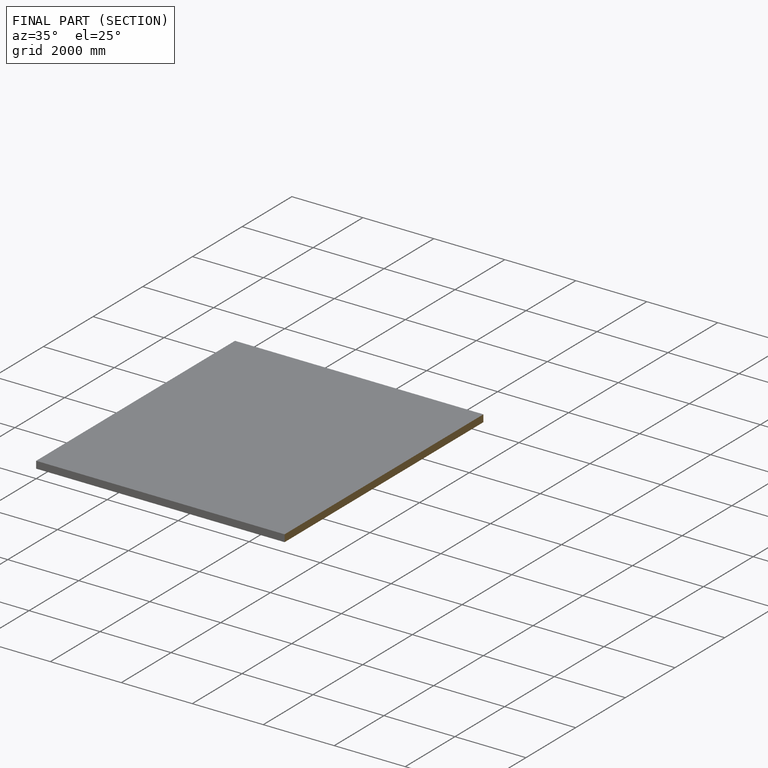
[diagram: finished part — half-section view (interior)]
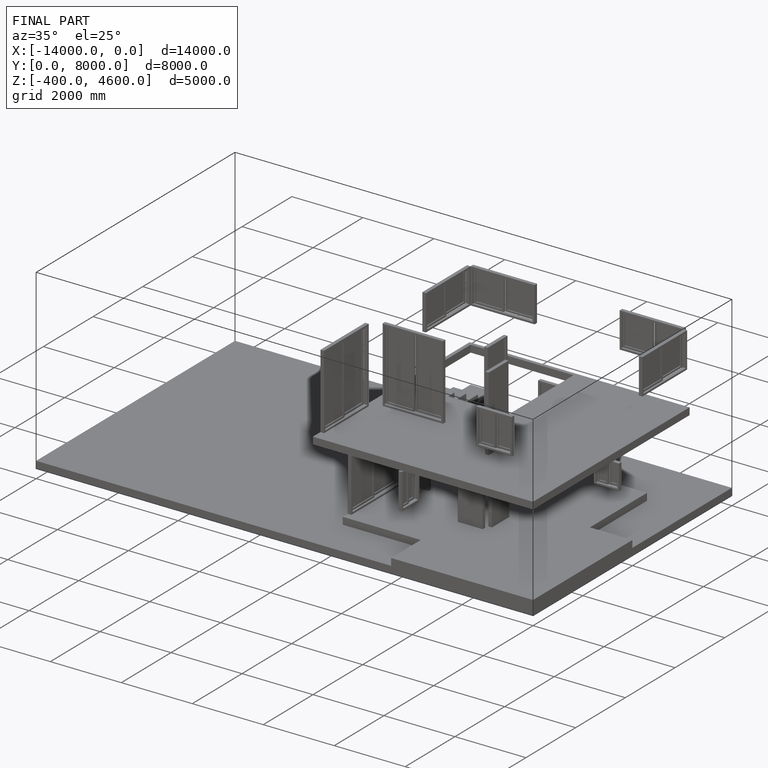
[diagram: finished part — iso view with bounding-box wireframe]
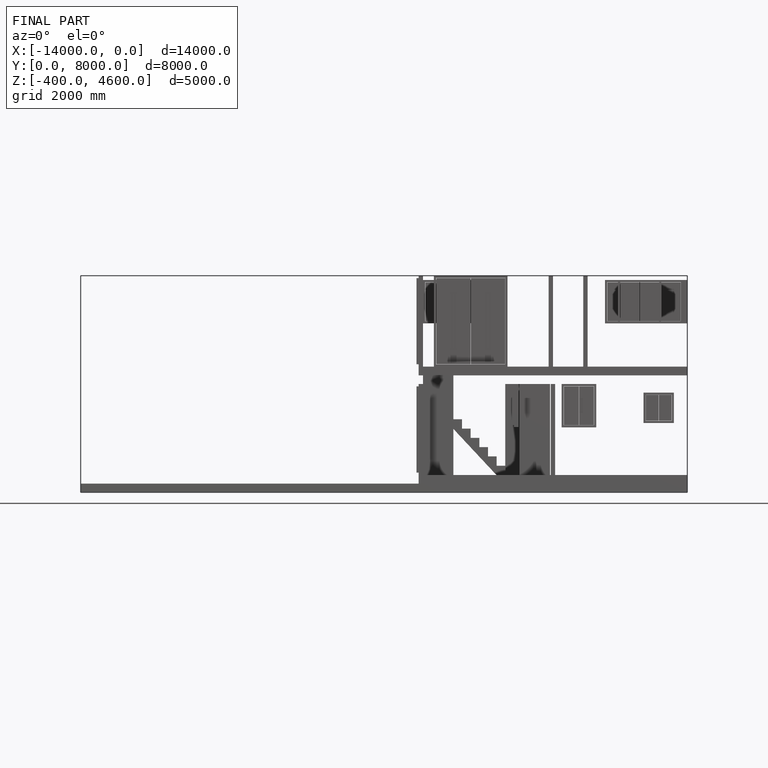
[diagram: finished part — front view with bounding-box wireframe]
